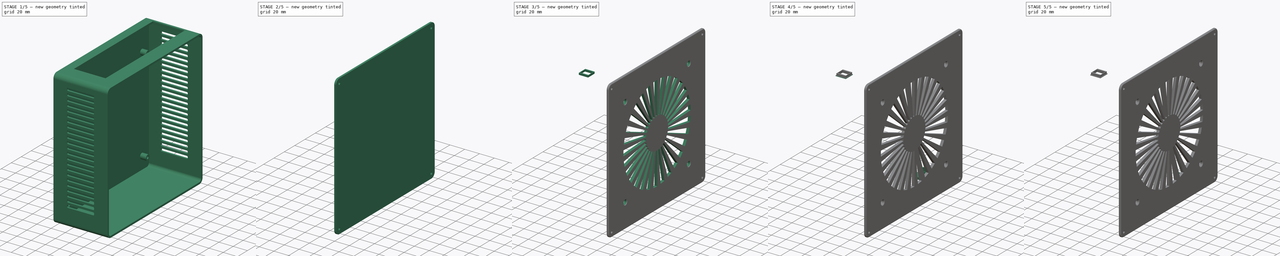
[diagram: build sequence overview — one tinted view per stage of 5, left to right]
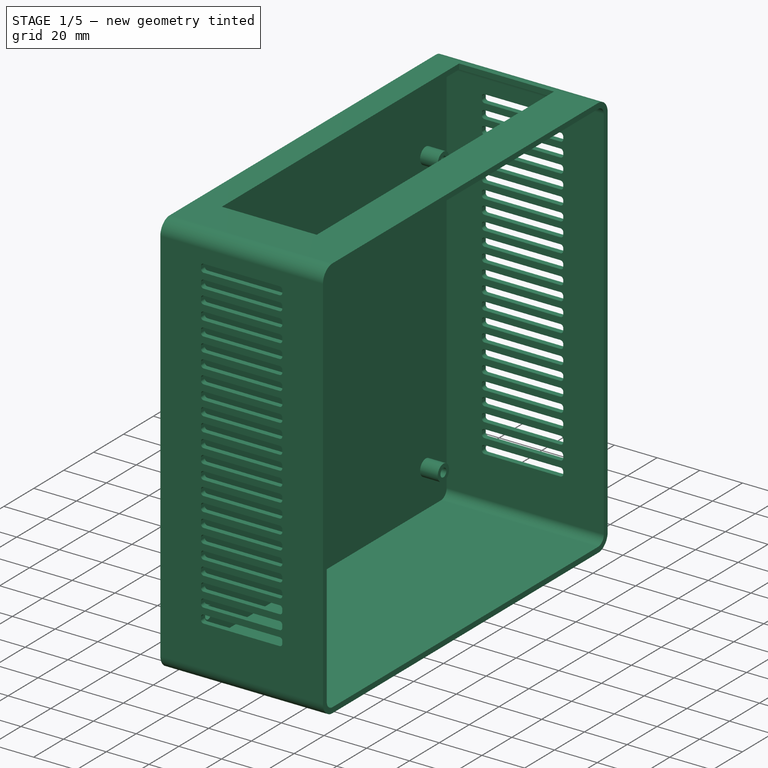
[diagram: stage 1 of 5 — iso view after this stage's code; geometry added in this stage tinted green]
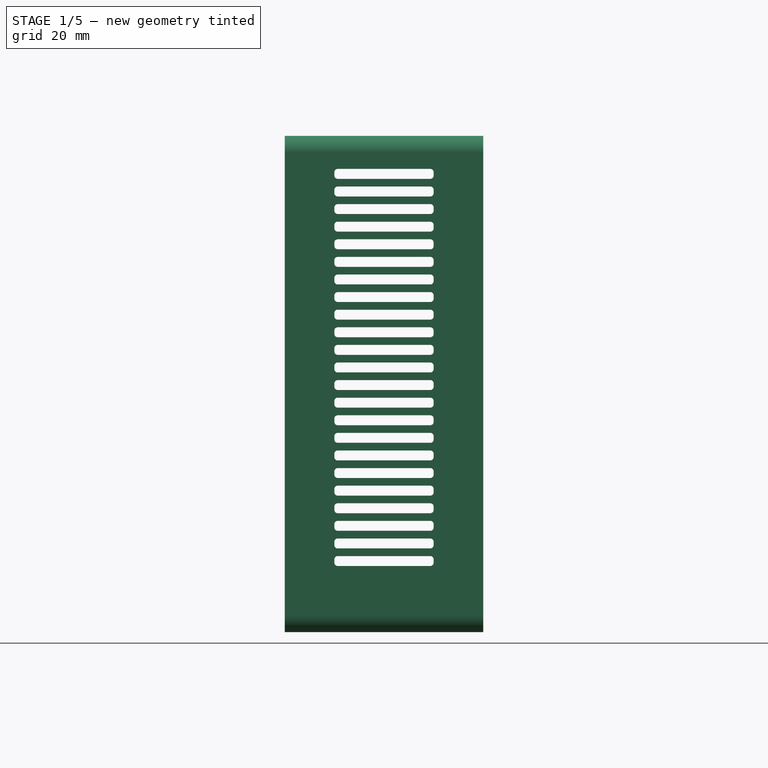
[diagram: stage 1 of 5 — front view after this stage's code; geometry added in this stage tinted green]
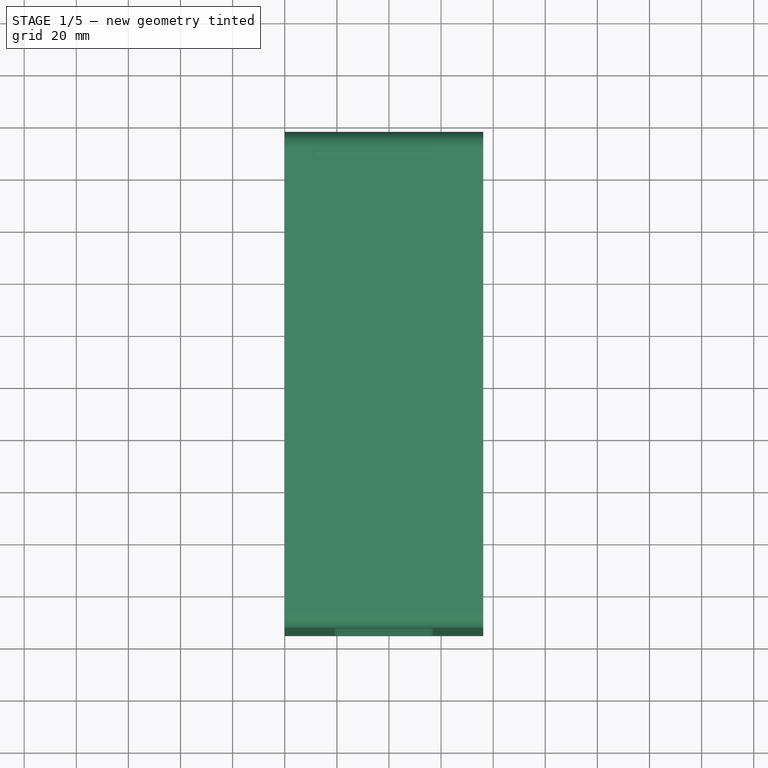
[diagram: stage 1 of 5 — top view after this stage's code; geometry added in this stage tinted green]
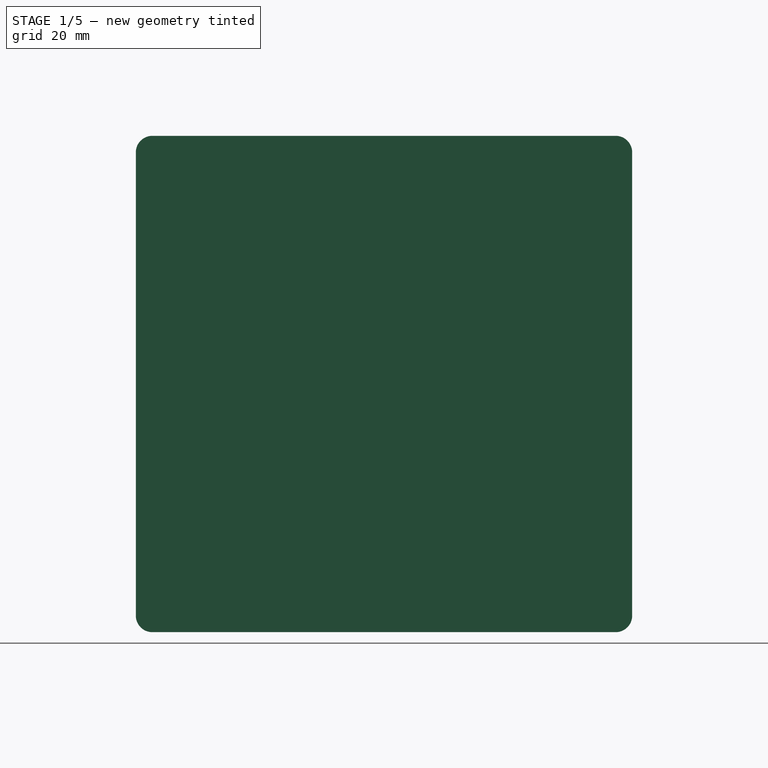
[diagram: stage 1 of 5 — right view after this stage's code; geometry added in this stage tinted green]
FCSTD DOCUMENT  (FreeCAD 1.1R20260113 (Git shallow))
Label: Mini-ITX-Case
License: All rights reserved
LicenseURL: https://en.wikipedia.org/wiki/All_rights_reserved
objects: Sketcher::SketchObject×22, PartDesign::Pad×16, PartDesign::Pocket×7, App::Point×5, PartDesign::Body×5, PartDesign::SubShapeBinder×4, PartDesign::Chamfer×3, PartDesign::Mirrored×2, PartDesign::PolarPattern×2, PartDesign::Fillet×2, PartDesign::LinearPattern×1, PartDesign::MultiTransform×1, Part::DatumLine×1
note: 149 computed .brp shape members not serialized (recipe doc carries the construction recipe); baked Part::Feature solids carry a one-line shape summary decoded from their .brp

FEATURE [App::Point] Origin001
  Role = Origin
FEATURE [Sketcher::SketchObject] Sketch
  ArcFitTolerance = 1e-06
  AttachmentSupport = -> [Origin]
  ExternalTypes = [0]
  FullyConstrained = true
  MakeInternals = false
  MapMode = 5
  Placement = pos=(0,0,0) rot=(0.57735,0.57735,0.57735;2.0944rad)
  sketch-geometry (10):
    g0: LineSegment StartX=-88.9 StartY=-95.25 StartZ=0 EndX=88.9 EndY=-95.25 EndZ=0
    g1: LineSegment StartX=95.25 StartY=-88.9 StartZ=0 EndX=95.25 EndY=88.9 EndZ=0
    g2: LineSegment StartX=88.9 StartY=95.25 StartZ=0 EndX=-88.9 EndY=95.25 EndZ=0
    g3: LineSegment StartX=-95.25 StartY=88.9 StartZ=0 EndX=-95.25 EndY=-88.9 EndZ=0
    g4: ArcOfCircle CenterX=-88.9 CenterY=-88.9 CenterZ=0 NormalX=0 NormalY=0 NormalZ=1 AngleXU=0 Radius=6.35 StartAngle=3.14159 EndAngle=4.71239
    g5: ArcOfCircle CenterX=88.9 CenterY=-88.9 CenterZ=0 NormalX=0 NormalY=0 NormalZ=1 AngleXU=0 Radius=6.35 StartAngle=4.71239 EndAngle=6.28319
    g6: ArcOfCircle CenterX=88.9 CenterY=88.9 CenterZ=0 NormalX=0 NormalY=0 NormalZ=1 AngleXU=0 Radius=6.35 StartAngle=-9e-16 EndAngle=1.5708
    g7: ArcOfCircle CenterX=-88.9 CenterY=88.9 CenterZ=0 NormalX=0 NormalY=0 NormalZ=1 AngleXU=0 Radius=6.35 StartAngle=1.5708 EndAngle=3.14159
    g8: GeomPoint [constr] X=95.25 Y=95.25 Z=0
    g9: GeomPoint [constr] X=0 Y=0 Z=0
  constraints (22):
    c: Tangent(g0,g4) = -1.5708
    c: Tangent(g0,g5) = -1.5708
    c: Tangent(g1,g5) = -1.5708
    c: Tangent(g1,g6) = -1.5708
    c: Tangent(g2,g6) = -1.5708
    c: Tangent(g2,g7) = -1.5708
    c: Tangent(g3,g7) = -1.5708
    c: Tangent(g3,g4) = -1.5708
    c: Horizontal(g0)
    c: Horizontal(g2)
    c: Vertical(g1)
    c: Vertical(g3)
    c: Equal(g4,g5)
    c: Equal(g5,g6)
    c: Equal(g6,g7)
    c: Symmetric(g2,g0,g9)
    c: PointOnObject(g8,g1)
    c: PointOnObject(g8,g2)
    c: Distance(g1,g3) = 190.5
    c: Distance(g0,g2) = 190.5
    c: Radius(g5) = 6.35
    c: Coincident(g9,g-1)
FEATURE [PartDesign::Pad] Pad
  Direction = (1,0,0)
  Length = 2.54
  Length2 = 10
  Profile = -> Sketch
  ReferenceAxis = -> Sketch [N_Axis]
  Refine = true
  SideType = 0
  Suppressed = false
  Type = 0
  Type2 = 0
FEATURE [Sketcher::SketchObject] Sketch001
  ArcFitTolerance = 1e-06
  AttachmentSupport = -> [Pad]
  ExternalGeometry = -> [Pad]
  ExternalTypes = [0]
  FullyConstrained = true
  MakeInternals = false
  MapMode = 5
  Placement = pos=(2.54,0,0) rot=(0.57735,0.57735,0.57735;2.0944rad)
  sketch-geometry (13):
    g0: LineSegment [constr] StartX=-78.74 StartY=-74.93 StartZ=0 EndX=78.74 EndY=-74.93 EndZ=0
    g1: LineSegment [constr] StartX=78.74 StartY=-74.93 StartZ=0 EndX=78.74 EndY=80.01 EndZ=0
    g2: LineSegment [constr] StartX=78.74 StartY=80.01 StartZ=0 EndX=-78.74 EndY=80.01 EndZ=0
    g3: LineSegment [constr] StartX=-78.74 StartY=80.01 StartZ=0 EndX=-78.74 EndY=-74.93 EndZ=0
    g4: GeomPoint [constr] X=0 Y=2.54 Z=0
    g5: Circle CenterX=-78.74 CenterY=80.01 CenterZ=0 NormalX=0 NormalY=0 NormalZ=1 AngleXU=0 Radius=1.9685
    g6: Circle CenterX=78.74 CenterY=-74.93 CenterZ=0 NormalX=0 NormalY=0 NormalZ=1 AngleXU=0 Radius=1.9685
    g7: Circle CenterX=-78.74 CenterY=-74.93 CenterZ=0 NormalX=0 NormalY=0 NormalZ=1 AngleXU=0 Radius=1.9685
    g8: Circle CenterX=78.74 CenterY=57.15 CenterZ=0 NormalX=0 NormalY=0 NormalZ=1 AngleXU=0 Radius=1.9685
    g9: Circle CenterX=78.74 CenterY=57.15 CenterZ=0 NormalX=0 NormalY=0 NormalZ=1 AngleXU=0 Radius=3.81
    g10: Circle CenterX=78.74 CenterY=-74.93 CenterZ=0 NormalX=0 NormalY=0 NormalZ=1 AngleXU=0 Radius=3.81
    g11: Circle CenterX=-78.74 CenterY=-74.93 CenterZ=0 NormalX=0 NormalY=0 NormalZ=1 AngleXU=0 Radius=3.81
    g12: Circle CenterX=-78.74 CenterY=80.01 CenterZ=0 NormalX=0 NormalY=0 NormalZ=1 AngleXU=0 Radius=3.81
  constraints (30):
    c: Coincident(g0,g1)
    c: Coincident(g1,g2)
    c: Coincident(g2,g3)
    c: Coincident(g3,g0)
    c: Horizontal(g0)
    c: Horizontal(g2)
    c: Vertical(g1)
    c: Vertical(g3)
    c: Symmetric(g2,g0,g4)
    c: Distance(g1,g3) = 157.48
    c: Distance(g0,g2) = 154.94
    c: PointOnObject(g4,g-2)
    c: Distance(g-3,g2) = 15.24
    c: Coincident(g5,g2)
    c: Coincident(g6,g0)
    c: Coincident(g7,g0)
    c: PointOnObject(g8,g1)
    c: Diameter(g8) = 3.937
    c: Equal(g8,g6)
    c: Equal(g8,g5)
    c: Equal(g8,g7)
    c: Coincident(g9,g8)
    c: Diameter(g9) = 7.62
    c: Coincident(g10,g0)
    c: Coincident(g11,g0)
    c: Coincident(g12,g2)
    c: Equal(g9,g12)
    c: Equal(g9,g10)
    c: Equal(g9,g11)
    c: Distance(g8,g2) = 22.86
FEATURE [PartDesign::Pad] Pad001
  BaseFeature = -> Pad
  Direction = (1,0,0)
  Length = 8.255
  Length2 = 10
  Profile = -> Sketch001
  ReferenceAxis = -> Sketch001 [N_Axis]
  Refine = true
  SideType = 0
  Suppressed = false
  Type = 0
  Type2 = 0
FEATURE [Sketcher::SketchObject] Sketch002
  ArcFitTolerance = 1e-06
  AttachmentSupport = -> [Pad001]
  ExternalGeometry = -> [Pad001]
  ExternalTypes = [0,0]
  FullyConstrained = true
  MakeInternals = false
  MapMode = 5
  Placement = pos=(2.54,0,0) rot=(0.57735,0.57735,0.57735;2.0944rad)
  sketch-geometry (18):
    g0: LineSegment StartX=-95.25 StartY=88.9 StartZ=0 EndX=-95.25 EndY=-88.9 EndZ=0
    g1: LineSegment StartX=-88.9 StartY=-95.25 StartZ=0 EndX=88.9 EndY=-95.25 EndZ=0
    g2: LineSegment StartX=95.25 StartY=-88.9 StartZ=0 EndX=95.25 EndY=88.9 EndZ=0
    g3: LineSegment StartX=88.9 StartY=95.25 StartZ=0 EndX=-88.9 EndY=95.25 EndZ=0
    g4: ArcOfCircle CenterX=-88.9 CenterY=88.9 CenterZ=0 NormalX=0 NormalY=0 NormalZ=1 AngleXU=0 Radius=6.35 StartAngle=1.5708 EndAngle=3.14159
    g5: ArcOfCircle CenterX=-88.9 CenterY=-88.9 CenterZ=0 NormalX=0 NormalY=0 NormalZ=1 AngleXU=0 Radius=6.35 StartAngle=3.14159 EndAngle=4.71239
    g6: ArcOfCircle CenterX=88.9 CenterY=-88.9 CenterZ=0 NormalX=0 NormalY=0 NormalZ=1 AngleXU=0 Radius=6.35 StartAngle=4.71239 EndAngle=6.28319
    g7: ArcOfCircle CenterX=88.9 CenterY=88.9 CenterZ=0 NormalX=0 NormalY=0 NormalZ=1 AngleXU=0 Radius=6.35 StartAngle=-9e-16 EndAngle=1.5708
    g8: LineSegment StartX=-92.71 StartY=88.9 StartZ=0 EndX=-92.71 EndY=-88.9 EndZ=0
    g9: LineSegment StartX=-88.9 StartY=-92.71 StartZ=0 EndX=88.9 EndY=-92.71 EndZ=0
    g10: LineSegment StartX=92.71 StartY=-88.9 StartZ=0 EndX=92.71 EndY=88.9 EndZ=0
    g11: LineSegment StartX=88.9 StartY=92.71 StartZ=0 EndX=-88.9 EndY=92.71 EndZ=0
    g12: ArcOfCircle CenterX=-88.9 CenterY=88.9 CenterZ=0 NormalX=0 NormalY=0 NormalZ=1 AngleXU=0 Radius=3.81 StartAngle=1.5708 EndAngle=3.14159
    g13: ArcOfCircle CenterX=-88.9 CenterY=-88.9 CenterZ=0 NormalX=0 NormalY=0 NormalZ=1 AngleXU=0 Radius=3.81 StartAngle=3.14159 EndAngle=4.71239
    g14: ArcOfCircle CenterX=88.9 CenterY=-88.9 CenterZ=0 NormalX=0 NormalY=0 NormalZ=1 AngleXU=0 Radius=3.81 StartAngle=4.71239 EndAngle=6.28319
    g15: ArcOfCircle CenterX=88.9 CenterY=88.9 CenterZ=0 NormalX=0 NormalY=0 NormalZ=1 AngleXU=0 Radius=3.81 StartAngle=5e-16 EndAngle=1.5708
    g16: GeomPoint [constr] X=95.25 Y=-95.25 Z=0
    g17: GeomPoint [constr] X=0 Y=0 Z=0
  constraints (36):
    c: Tangent(g0,g4) = -1.5708
    c: Tangent(g0,g5) = -1.5708
    c: Tangent(g1,g5) = -1.5708
    c: Tangent(g1,g6) = -1.5708
    c: Tangent(g2,g6) = -1.5708
    c: Tangent(g2,g7) = -1.5708
    c: Tangent(g3,g7) = -1.5708
    c: Tangent(g3,g4) = -1.5708
    c: Vertical(g2)
    c: Horizontal(g3)
    c: Equal(g4,g5)
    c: Equal(g5,g6)
    c: Equal(g6,g7)
    c: Tangent(g8,g12) = -1.5708
    c: Tangent(g8,g13) = -1.5708
    c: Tangent(g9,g13) = -1.5708
    c: Tangent(g9,g14) = -1.5708
    c: Tangent(g10,g14) = -1.5708
    c: Tangent(g10,g15) = -1.5708
    c: Tangent(g11,g15) = -1.5708
    c: Tangent(g11,g12) = -1.5708
    c: Coincident(g4,g12)
    c: Coincident(g5,g13)
    c: Coincident(g6,g14)
    c: Coincident(g7,g15)
    c: Vertical(g8)
    c: Vertical(g10)
    c: Horizontal(g9)
    c: Symmetric(g2,g0,g17)
    c: PointOnObject(g16,g1)
    c: PointOnObject(g16,g2)
    c: Radius(g5) = 6.35
    c: Coincident(g17,g-1)
    c: Tangent(g-4,g1)
    c: Tangent(g-3,g0)
    c: Distance(g8,g0) = 2.54
FEATURE [PartDesign::Pad] Pad002
  BaseFeature = -> Pad001
  Direction = (1,0,0)
  Length = 73.66
  Length2 = 10
  Profile = -> Sketch002
  ReferenceAxis = -> Sketch002 [N_Axis]
  Refine = true
  SideType = 0
  Suppressed = false
  Type = 0
  Type2 = 0
FEATURE [Sketcher::SketchObject] Sketch003
  ArcFitTolerance = 1e-06
  AttachmentSupport = -> [Pad002]
  ExternalGeometry = -> [Pad002]
  ExternalTypes = [0,0]
  FullyConstrained = true
  MakeInternals = false
  MapMode = 5
  Placement = pos=(0,0,95.25) rot=(0,0,1;0rad)
  sketch-geometry (8):
    g0: LineSegment [constr] StartX=10.795 StartY=80.7085 StartZ=0 EndX=10.795 EndY=78.74 EndZ=0
    g1: LineSegment [constr] StartX=10.795 StartY=78.74 StartZ=0 EndX=10.795 EndY=76.7715 EndZ=0
    g2: LineSegment [constr] StartX=10.795 StartY=-76.7715 StartZ=0 EndX=10.795 EndY=-78.74 EndZ=0
    g3: LineSegment [constr] StartX=10.795 StartY=-78.74 StartZ=0 EndX=10.795 EndY=-80.7085 EndZ=0
    g4: LineSegment StartX=56.388 StartY=87.63 StartZ=0 EndX=11.938 EndY=87.63 EndZ=0
    g5: LineSegment StartX=11.938 StartY=87.63 StartZ=0 EndX=11.938 EndY=-71.12 EndZ=0
    g6: LineSegment StartX=11.938 StartY=-71.12 StartZ=0 EndX=56.388 EndY=-71.12 EndZ=0
    g7: LineSegment StartX=56.388 StartY=-71.12 StartZ=0 EndX=56.388 EndY=87.63 EndZ=0
  constraints (23):
    c: Coincident(g0,g-3)
    c: Coincident(g0,g1)
    c: Coincident(g1,g-3)
    c: Equal(g1,g0)
    c: Parallel(g0,g1)
    c: Coincident(g2,g-4)
    c: Coincident(g2,g3)
    c: Coincident(g3,g-4)
    c: Equal(g3,g2)
    c: Parallel(g2,g3)
    c: Coincident(g4,g5)
    c: Coincident(g5,g6)
    c: Coincident(g6,g7)
    c: Coincident(g7,g4)
    c: Horizontal(g4)
    c: Horizontal(g6)
    c: Vertical(g5)
    c: Vertical(g7)
    c: DistanceY(g5,g5) = 158.75
    c: DistanceX(g6,g6) = 44.45
    c: Distance(g2,g6) = 7.62
    c: Distance(g5,g-2) = 11.938
    c: Distance(g2,g5) = 1.143
FEATURE [PartDesign::Pocket] Pocket
  BaseFeature = -> Pad002
  Direction = (0,0,-1)
  Length = 5
  Length2 = 5
  Profile = -> Sketch003
  ReferenceAxis = -> Sketch003 [N_Axis]
  Refine = true
  SideType = 0
  Suppressed = false
  Type = 3
  Type2 = 0
  UpToFace = -> Pad002 [Face10]
FEATURE [Sketcher::SketchObject] Sketch004
  ArcFitTolerance = 1e-06
  AttachmentSupport = -> [Pocket]
  ExternalGeometry = -> [Pocket]
  ExternalTypes = [0,0,0]
  FullyConstrained = true
  MakeInternals = false
  MapMode = 5
  Placement = pos=(0,-95.25,0) rot=(1,0,0;1.5708rad)
  sketch-geometry (13):
    g0: LineSegment [constr] StartX=76.2 StartY=0 StartZ=0 EndX=38.1 EndY=0 EndZ=0
    g1: LineSegment [constr] StartX=38.1 StartY=0 StartZ=0 EndX=0 EndY=0 EndZ=0
    g2: LineSegment [constr] StartX=38.1 StartY=88.9 StartZ=0 EndX=38.1 EndY=-88.9 EndZ=0
    g3: LineSegment StartX=55.88 StartY=82.55 StartZ=0 EndX=20.32 EndY=82.55 EndZ=0
    g4: LineSegment StartX=19.05 StartY=81.28 StartZ=0 EndX=19.05 EndY=80.01 EndZ=0
    g5: LineSegment StartX=20.32 StartY=78.74 StartZ=0 EndX=55.88 EndY=78.74 EndZ=0
    g6: LineSegment StartX=57.15 StartY=80.01 StartZ=0 EndX=57.15 EndY=81.28 EndZ=0
    g7: ArcOfCircle CenterX=55.88 CenterY=81.28 CenterZ=0 NormalX=0 NormalY=0 NormalZ=1 AngleXU=0 Radius=1.27 StartAngle=-1.8e-15 EndAngle=1.5708
    g8: ArcOfCircle CenterX=20.32 CenterY=81.28 CenterZ=0 NormalX=0 NormalY=0 NormalZ=1 AngleXU=0 Radius=1.27 StartAngle=1.5708 EndAngle=3.14159
    g9: ArcOfCircle CenterX=20.32 CenterY=80.01 CenterZ=0 NormalX=0 NormalY=0 NormalZ=1 AngleXU=0 Radius=1.27 StartAngle=3.14159 EndAngle=4.71239
    g10: ArcOfCircle CenterX=55.88 CenterY=80.01 CenterZ=0 NormalX=0 NormalY=0 NormalZ=1 AngleXU=0 Radius=1.27 StartAngle=4.71239 EndAngle=6.28319
    g11: GeomPoint [constr] X=19.05 Y=78.74 Z=0
    g12: GeomPoint [constr] X=38.1 Y=80.645 Z=0
  constraints (34):
    c: Coincident(g0,g1)
    c: Coincident(g1,g-1)
    c: Equal(g1,g0)
    c: PointOnObject(g0,g-3)
    c: PointOnObject(g0,g-1)
    c: Parallel(g0,g1)
    c: PointOnObject(g2,g-4)
    c: PointOnObject(g2,g-5)
    c: Vertical(g2)
    c: PointOnObject(g0,g2)
    c: DistanceY(g2,g2) = 177.8
    c: Tangent(g3,g7) = -1.5708
    c: Tangent(g3,g8) = -1.5708
    c: Tangent(g4,g8) = -1.5708
    c: Tangent(g4,g9) = -1.5708
    c: Tangent(g5,g9) = -1.5708
    c: Tangent(g5,g10) = -1.5708
    c: Tangent(g6,g10) = -1.5708
    c: Tangent(g6,g7) = -1.5708
    c: Horizontal(g3)
    c: Horizontal(g5)
    c: Vertical(g4)
    c: Vertical(g6)
    c: Equal(g7,g8)
    c: Equal(g8,g9)
    c: Equal(g9,g10)
    c: Symmetric(g5,g3,g12)
    c: PointOnObject(g11,g4)
    c: PointOnObject(g11,g5)
    c: Radius(g8) = 1.27
    c: PointOnObject(g12,g2)
    c: Distance(g3,g5) = 3.81
    c: Distance(g6,g4) = 38.1
    c: Distance(g3,g-4) = 6.35
FEATURE [PartDesign::Pocket] Pocket001
  BaseFeature = -> Pocket
  Direction = (0,1,-2e-16)
  Length = 5
  Length2 = 5
  Profile = -> Sketch004
  ReferenceAxis = -> Sketch004 [N_Axis]
  Refine = true
  SideType = 0
  Suppressed = false
  Type = 3
  Type2 = 0
  UpToFace = -> Pocket [Face4]
FEATURE [PartDesign::LinearPattern] LinearPattern
  BaseFeature = -> Pocket001
  Direction = -> Sketch004 [V_Axis]
  Direction2 = -> Sketch004 [V_Axis]
  Length = 148.59
  Length2 = 100
  Mode = 0
  Mode2 = 0
  Occurrences = 23
  Occurrences2 = 1
  Offset = 6.75409
  Offset2 = 100
  Originals = -> [Pocket001]
  Refine = true
  Reversed = true
  Reversed2 = false
  SpacingPattern = [0]
  SpacingPattern2 = [0]
  Spacings = [-1,-1,-1,-1,-1,-1,-1,-1,-1,-1,-1,-1,-1,-1,-1,-1,-1,-1,-1,-1,-1,-1]
  Suppressed = false
  TransformMode = 0
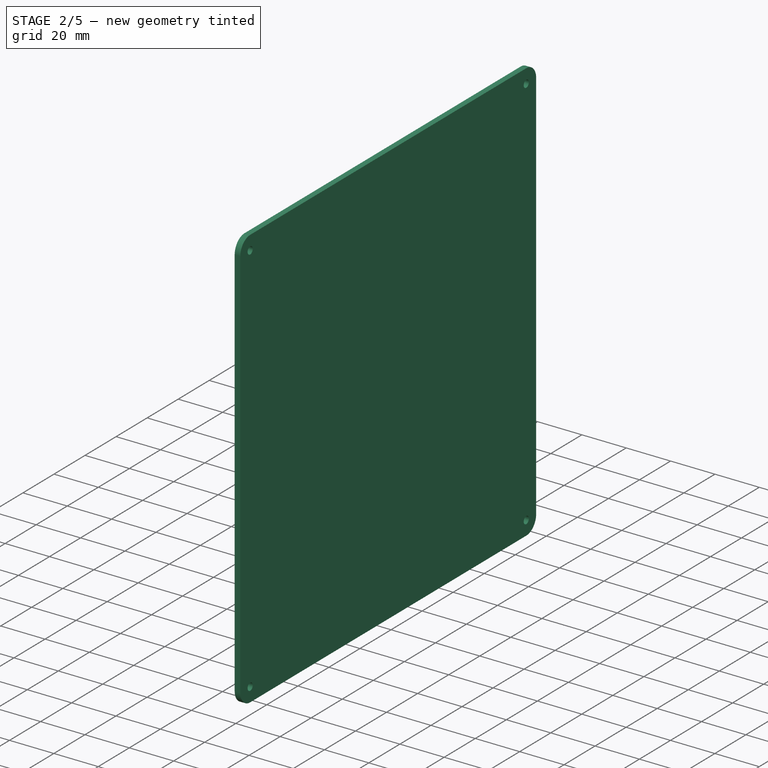
[diagram: stage 2 of 5 — iso view after this stage's code; geometry added in this stage tinted green]
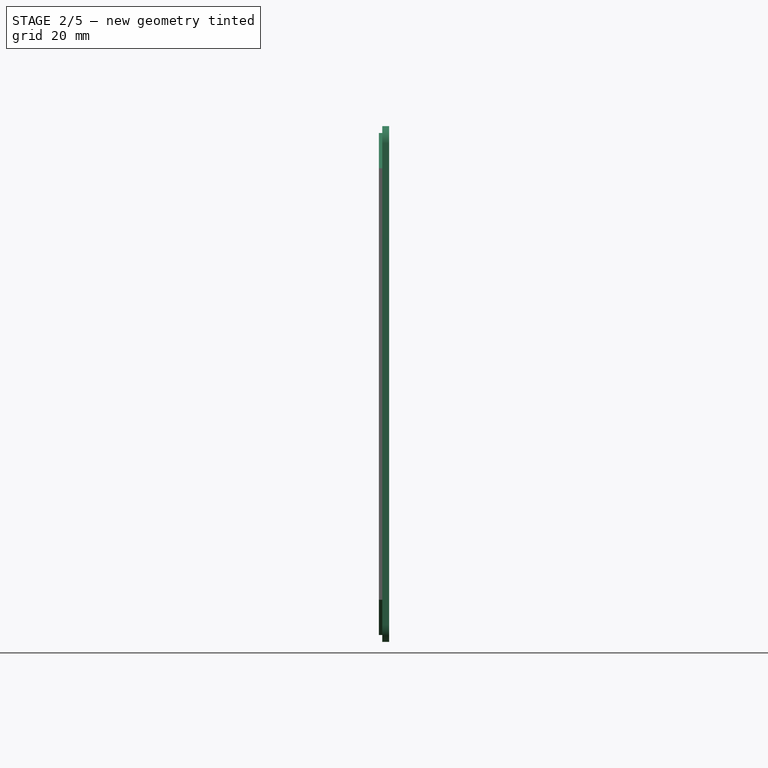
[diagram: stage 2 of 5 — front view after this stage's code; geometry added in this stage tinted green]
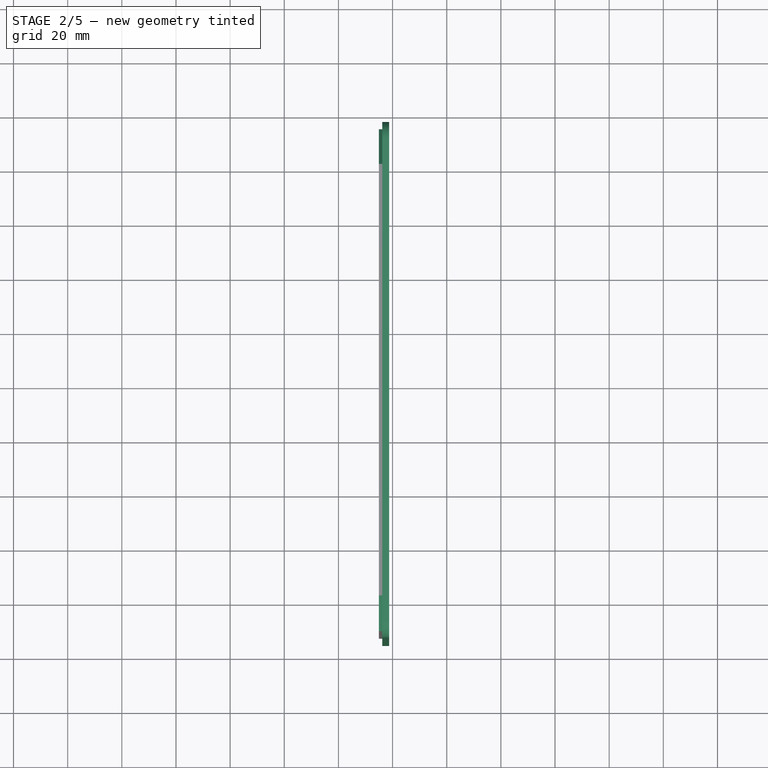
[diagram: stage 2 of 5 — top view after this stage's code; geometry added in this stage tinted green]
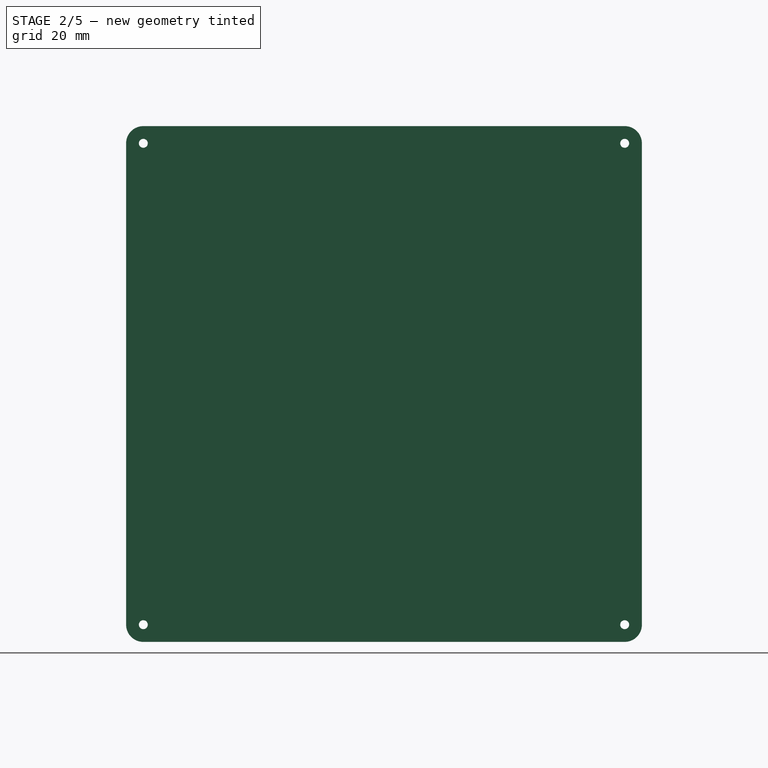
[diagram: stage 2 of 5 — right view after this stage's code; geometry added in this stage tinted green]
FEATURE [Sketcher::SketchObject] Sketch005
  ArcFitTolerance = 1e-06
  AttachmentSupport = -> [LinearPattern]
  ExternalGeometry = -> [LinearPattern]
  ExternalTypes = [0,0,0]
  FullyConstrained = true
  MakeInternals = false
  MapMode = 5
  Placement = pos=(0,0,-95.25) rot=(1,0,0;3.14159rad)
  sketch-geometry (7):
    g0: LineSegment StartX=29.21 StartY=-86.36 StartZ=0 EndX=46.99 EndY=-86.36 EndZ=0
    g1: LineSegment StartX=46.99 StartY=-86.36 StartZ=0 EndX=46.99 EndY=-68.58 EndZ=0
    g2: LineSegment StartX=46.99 StartY=-68.58 StartZ=0 EndX=29.21 EndY=-68.58 EndZ=0
    g3: LineSegment StartX=29.21 StartY=-68.58 StartZ=0 EndX=29.21 EndY=-86.36 EndZ=0
    g4: GeomPoint [constr] X=38.1 Y=-77.47 Z=0
    g5: LineSegment [constr] StartX=0 StartY=-77.47 StartZ=0 EndX=38.1 EndY=-77.47 EndZ=0
    g6: LineSegment [constr] StartX=38.1 StartY=-77.47 StartZ=0 EndX=76.2 EndY=-77.47 EndZ=0
  constraints (19):
    c: Coincident(g0,g1)
    c: Coincident(g1,g2)
    c: Coincident(g2,g3)
    c: Coincident(g3,g0)
    c: Horizontal(g0)
    c: Horizontal(g2)
    c: Vertical(g1)
    c: Vertical(g3)
    c: Symmetric(g2,g0,g4)
    c: Distance(g1,g3) = 17.78
    c: Equal(g3,g0)
    c: PointOnObject(g5,g-4)
    c: Horizontal(g5)
    c: Coincident(g5,g6)
    c: PointOnObject(g6,g-3)
    c: Horizontal(g6)
    c: Equal(g6,g5)
    c: Coincident(g4,g5)
    c: Distance(g-5,g0) = 2.54
FEATURE [PartDesign::Pocket] Pocket002
  BaseFeature = -> LinearPattern
  Direction = (0,0,1)
  Length = 5
  Length2 = 5
  Profile = -> Sketch005
  ReferenceAxis = -> Sketch005 [N_Axis]
  Refine = true
  SideType = 0
  Suppressed = false
  Type = 3
  Type2 = 0
  UpToFace = -> LinearPattern [Face385]
FEATURE [Sketcher::SketchObject] Sketch006
  ArcFitTolerance = 1e-06
  AttachmentSupport = -> [Pocket002]
  ExternalGeometry = -> [Pocket002]
  ExternalTypes = [0,0,0,0]
  FullyConstrained = false
  MakeInternals = false
  MapMode = 5
  Placement = pos=(0,0,95.25) rot=(0,0,1;0rad)
  sketch-geometry (9):
    g0: LineSegment [constr] StartX=76.2 StartY=-80.01 StartZ=0 EndX=38.1 EndY=-80.01 EndZ=0
    g1: LineSegment [constr] StartX=38.1 StartY=-80.01 StartZ=0 EndX=0 EndY=-80.01 EndZ=0
    g2: LineSegment StartX=31.75 StartY=-73.66 StartZ=0 EndX=31.75 EndY=-86.36 EndZ=0
    g3: LineSegment StartX=31.75 StartY=-86.36 StartZ=0 EndX=44.45 EndY=-86.36 EndZ=0
    g4: LineSegment StartX=44.45 StartY=-86.36 StartZ=0 EndX=44.45 EndY=-73.66 EndZ=0
    g5: LineSegment StartX=44.45 StartY=-73.66 StartZ=0 EndX=31.75 EndY=-73.66 EndZ=0
    g6: GeomPoint [constr] X=38.1 Y=-80.01 Z=0
    g7: LineSegment [constr] StartX=21.0576 StartY=-71.12 StartZ=0 EndX=21.0576 EndY=-80.01 EndZ=0
    g8: LineSegment [constr] StartX=21.0576 StartY=-80.01 StartZ=0 EndX=21.0576 EndY=-88.9 EndZ=0
  constraints (25):
    c: PointOnObject(g0,g-4)
    c: Horizontal(g0)
    c: Coincident(g0,g1)
    c: PointOnObject(g1,g-5)
    c: Horizontal(g1)
    c: Equal(g1,g0)
    c: Coincident(g2,g3)
    c: Coincident(g3,g4)
    c: Coincident(g4,g5)
    c: Coincident(g5,g2)
    c: Vertical(g2)
    c: Vertical(g4)
    c: Horizontal(g3)
    c: Horizontal(g5)
    c: Symmetric(g4,g2,g6)
    c: Distance(g2,g4) = 12.7
    c: Coincident(g6,g0)
    c: Equal(g5,g2)
    c: PointOnObject(g7,g-6)
    c: PointOnObject(g7,g1)
    c: Vertical(g7)
    c: Coincident(g7,g8)
    c: PointOnObject(g8,g-3)
    c: Vertical(g8)
    c: Equal(g8,g7)
FEATURE [PartDesign::Pocket] Pocket003
  BaseFeature = -> Pocket002
  Direction = (0,0,-1)
  Length = 5
  Length2 = 5
  Profile = -> Sketch006
  ReferenceAxis = -> Sketch006 [N_Axis]
  Refine = true
  SideType = 0
  Suppressed = false
  Type = 3
  Type2 = 0
  UpToFace = -> Pocket002 [Face393]
FEATURE [Sketcher::SketchObject] Sketch007
  ArcFitTolerance = 1e-06
  AttachmentSupport = -> [Pocket003]
  ExternalGeometry = -> [Pocket003]
  ExternalTypes = [0,0,0,0,0,0]
  FullyConstrained = true
  MakeInternals = false
  MapMode = 5
  Placement = pos=(76.2,0,0) rot=(0.57735,0.57735,0.57735;2.0944rad)
  sketch-geometry (6):
    g0: Circle [constr] CenterX=-88.9 CenterY=-88.9 CenterZ=0 NormalX=0 NormalY=0 NormalZ=1 AngleXU=0 Radius=3.81
    g1: LineSegment StartX=-92.71 StartY=-79.7019 StartZ=0 EndX=-86.2059 EndY=-86.2059 EndZ=0
    g2: LineSegment StartX=-86.2059 StartY=-86.2059 StartZ=0 EndX=-79.7019 EndY=-92.71 EndZ=0
    g3: LineSegment StartX=-79.7019 StartY=-92.71 StartZ=0 EndX=-88.9 EndY=-92.71 EndZ=0
    g4: LineSegment StartX=-92.71 StartY=-88.9 StartZ=0 EndX=-92.71 EndY=-79.7019 EndZ=0
    g5: Circle CenterX=-88.9 CenterY=-88.9 CenterZ=0 NormalX=0 NormalY=0 NormalZ=1 AngleXU=0 Radius=1.9685
  constraints (14):
    c: Coincident(g0,g-3)
    c: PointOnObject(g-3,g0)
    c: PointOnObject(g1,g-4)
    c: Tangent(g1,g0) = 1.5708
    c: Coincident(g1,g2)
    c: PointOnObject(g2,g-5)
    c: Tangent(g2,g0)
    c: Equal(g1,g2)
    c: Coincident(g3,g2)
    c: Tangent(g3,g0) = 1.5708
    c: Coincident(g4,g-4)
    c: Coincident(g4,g1)
    c: Diameter(g5) = 3.937
    c: Coincident(g5,g0)
FEATURE [PartDesign::Pad] Pad003
  BaseFeature = -> Pocket003
  Direction = (1,0,0)
  Length = 6.35
  Length2 = 10
  Profile = -> Sketch007
  ReferenceAxis = -> Sketch007 [N_Axis]
  Refine = true
  Reversed = true
  SideType = 0
  Suppressed = false
  Type = 0
  Type2 = 0
FEATURE [PartDesign::Mirrored] Mirror
  MirrorPlane = -> Sketch007 [V_Axis]
  Refine = true
  Suppressed = false
  TransformMode = 0
FEATURE [PartDesign::Mirrored] Mirror001
  MirrorPlane = -> Sketch007 [H_Axis]
  Refine = true
  Suppressed = false
  TransformMode = 0
FEATURE [PartDesign::MultiTransform] MultiTransform
  BaseFeature = -> Pad003
  Originals = -> [Pad003]
  Refine = true
  Suppressed = false
  TransformMode = 0
  Transformations = -> [Mirror,Mirror001]
FEATURE [App::Point] Origin003
  Role = Origin
FEATURE [PartDesign::SubShapeBinder] Binder
  BindCopyOnChange = 0
  BindMode = 0
  ClaimChildren = false
  Context = -> Body001 [Binder.]
  Fuse = false
  MakeFace = true
  OffsetFill = false
  OffsetIntersection = false
  OffsetJoinType = 0
  OffsetOpenResult = false
  PartialLoad = false
  Refine = true
  Relative = true
  Support = -> [Body]
  _Version = 2
FEATURE [Sketcher::SketchObject] Sketch008
  ArcFitTolerance = 1e-06
  AttachmentSupport = -> [Binder]
  ExternalGeometry = -> [Binder]
  ExternalTypes = [0,0,0,0,0,0,0,0,0,0,0,0]
  FullyConstrained = true
  MakeInternals = false
  MapMode = 5
  Placement = pos=(76.2,0,0) rot=(0.57735,0.57735,0.57735;2.0944rad)
FEATURE [PartDesign::Pad] Pad004
  Direction = (1,0,0)
  Length = 1.27
  Length2 = 10
  Profile = -> Sketch008
  ReferenceAxis = -> Sketch008 [N_Axis]
  Refine = true
  Reversed = true
  SideType = 0
  Suppressed = false
  Type = 0
  Type2 = 0
FEATURE [Sketcher::SketchObject] Sketch009
  ArcFitTolerance = 1e-06
  AttachmentSupport = -> [Pad004]
  ExternalGeometry = -> [Binder]
  ExternalTypes = [0,0,0,0,0,0,0,0,0,0,0,0]
  FullyConstrained = true
  MakeInternals = false
  MapMode = 5
  Placement = pos=(76.2,0,0) rot=(0.57735,0.57735,0.57735;2.0944rad)
  sketch-geometry (4):
    g0: Circle CenterX=-88.9 CenterY=-88.9 CenterZ=0 NormalX=0 NormalY=0 NormalZ=1 AngleXU=0 Radius=1.651
    g1: Circle CenterX=88.9 CenterY=-88.9 CenterZ=0 NormalX=0 NormalY=0 NormalZ=1 AngleXU=0 Radius=1.651
    g2: Circle CenterX=88.9 CenterY=88.9 CenterZ=0 NormalX=0 NormalY=0 NormalZ=1 AngleXU=0 Radius=1.651
    g3: Circle CenterX=-88.9 CenterY=88.9 CenterZ=0 NormalX=0 NormalY=0 NormalZ=1 AngleXU=0 Radius=1.651
  constraints (8):
    c: Diameter(g0) = 3.302
    c: Coincident(g0,g-5)
    c: Diameter(g1) = 3.302
    c: Diameter(g2) = 3.302
    c: Diameter(g3) = 3.302
    c: Coincident(g1,g-9)
    c: Coincident(g2,g-11)
    c: Coincident(g-14,g3)
FEATURE [PartDesign::Pad] Pad005
  BaseFeature = -> Pad004
  Direction = (1,0,0)
  Length = 2.54
  Length2 = 10
  Profile = -> Sketch009
  ReferenceAxis = -> Sketch009 [N_Axis]
  Refine = true
  SideType = 0
  Suppressed = false
  Type = 0
  Type2 = 0
FEATURE [PartDesign::Body] Body004  label="BarrelJackHousing"
  AllowCompound = true
  Group = -> [Binder003,Sketch020,Pad014,Sketch021,Pad015]
  Origin = -> Origin008
  Tip = -> Pad015
FEATURE [PartDesign::Fillet] Fillet
  Base = -> MultiTransform [Edge5]
  BaseFeature = -> MultiTransform
  Radius = 1.27
  Refine = true
  SupportTransform = false
  Suppressed = false
  UseAllEdges = false
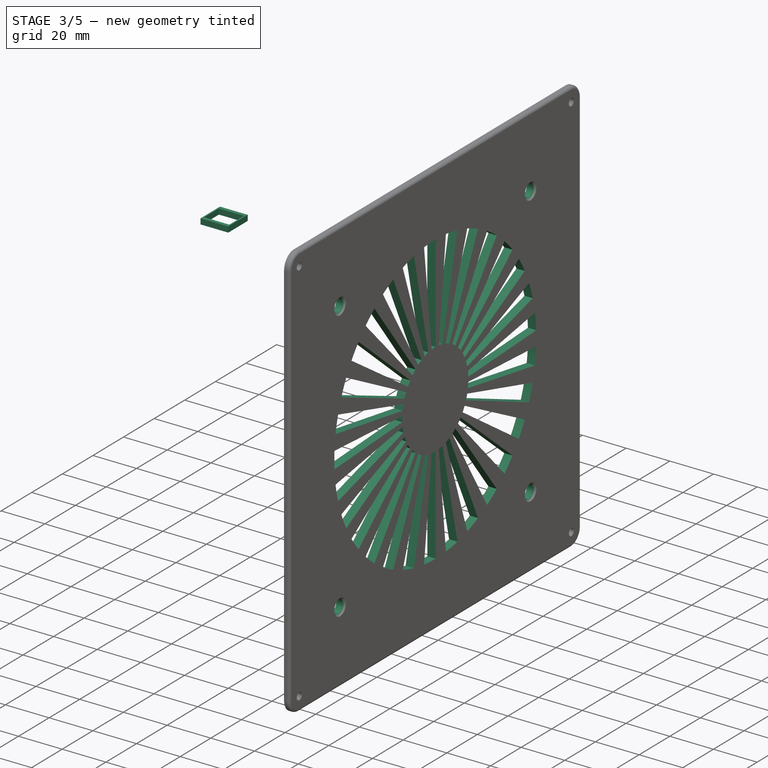
[diagram: stage 3 of 5 — iso view after this stage's code; geometry added in this stage tinted green]
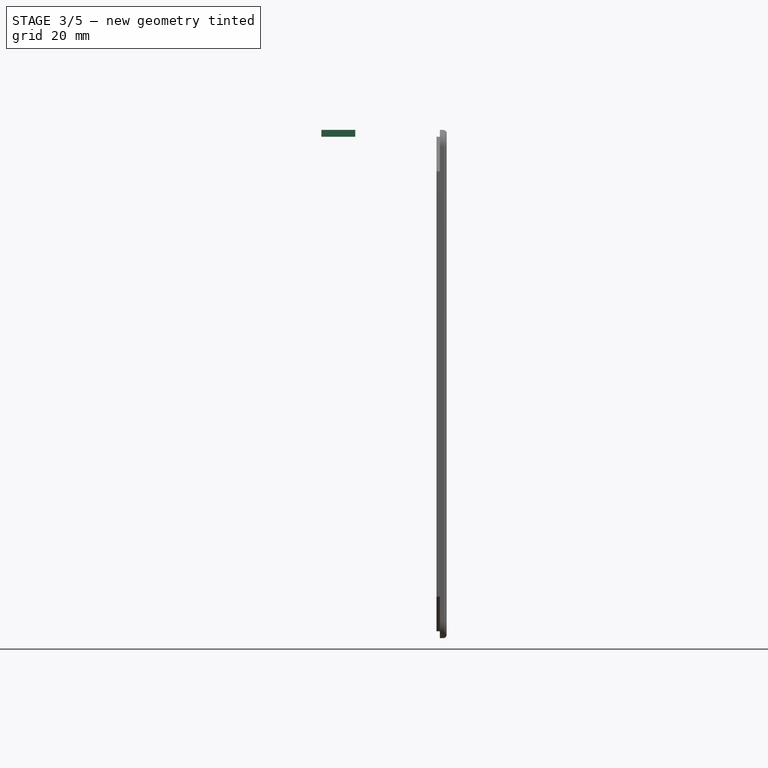
[diagram: stage 3 of 5 — front view after this stage's code; geometry added in this stage tinted green]
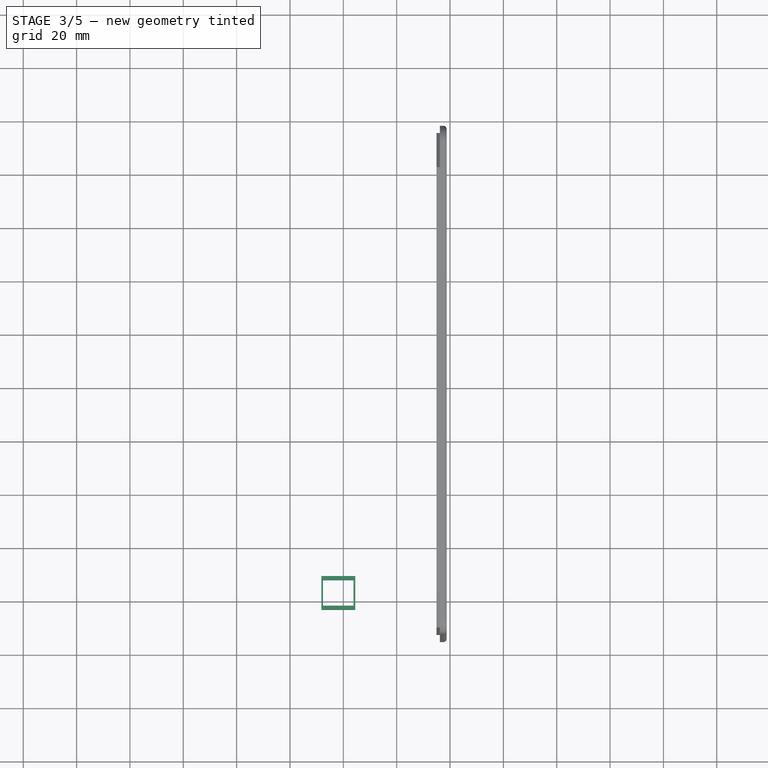
[diagram: stage 3 of 5 — top view after this stage's code; geometry added in this stage tinted green]
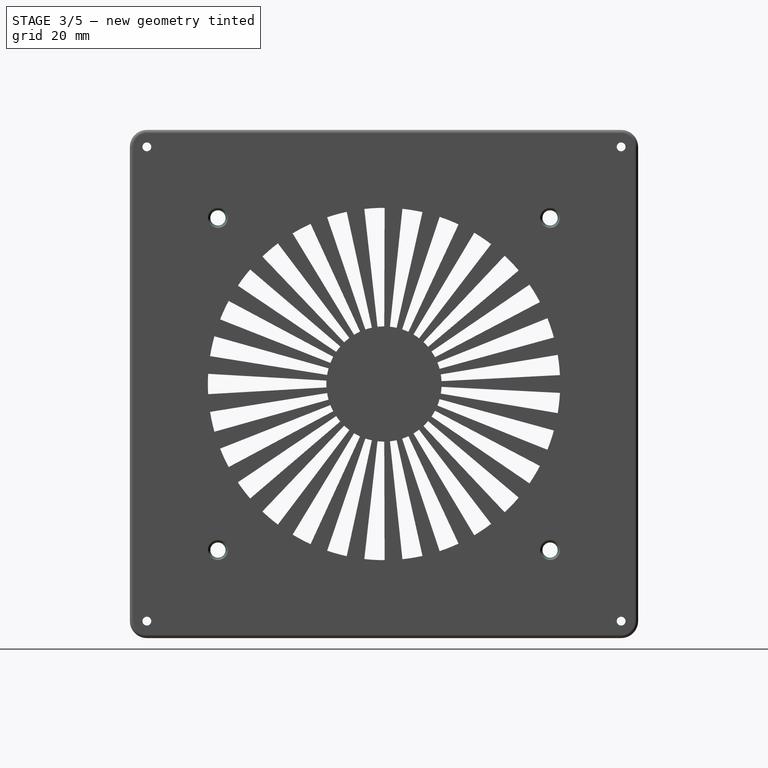
[diagram: stage 3 of 5 — right view after this stage's code; geometry added in this stage tinted green]
FEATURE [Sketcher::SketchObject] Sketch010
  ArcFitTolerance = 1e-06
  AttachmentSupport = -> [Pad005]
  ExternalGeometry = -> [Pad005]
  ExternalTypes = [0,0]
  FullyConstrained = true
  MakeInternals = false
  MapMode = 5
  Placement = pos=(78.74,0,0) rot=(0.57735,0.57735,0.57735;2.0944rad)
  sketch-geometry (11):
    g0: LineSegment [constr] StartX=-88.9 StartY=88.9 StartZ=0 EndX=0 EndY=-1.42e-14 EndZ=0
    g1: LineSegment [constr] StartX=0 StartY=-1.42e-14 StartZ=0 EndX=88.9 EndY=-88.9 EndZ=0
    g2: LineSegment [constr] StartX=-62.2554 StartY=62.2554 StartZ=0 EndX=-62.2554 EndY=-62.2554 EndZ=0
    g3: LineSegment [constr] StartX=-62.2554 StartY=-62.2554 StartZ=0 EndX=62.2554 EndY=-62.2554 EndZ=0
    g4: LineSegment [constr] StartX=62.2554 StartY=-62.2554 StartZ=0 EndX=62.2554 EndY=62.2554 EndZ=0
    g5: LineSegment [constr] StartX=62.2554 StartY=62.2554 StartZ=0 EndX=-62.2554 EndY=62.2554 EndZ=0
    g6: GeomPoint [constr] X=0 Y=-1.42e-14 Z=0
    g7: Circle CenterX=-62.2554 CenterY=-62.2554 CenterZ=0 NormalX=0 NormalY=0 NormalZ=1 AngleXU=0 Radius=2.8575
    g8: Circle CenterX=62.2554 CenterY=-62.2554 CenterZ=0 NormalX=0 NormalY=0 NormalZ=1 AngleXU=0 Radius=2.8575
    g9: Circle CenterX=62.2554 CenterY=62.2554 CenterZ=0 NormalX=0 NormalY=0 NormalZ=1 AngleXU=0 Radius=2.8575
    g10: Circle CenterX=-62.2554 CenterY=62.2554 CenterZ=0 NormalX=0 NormalY=0 NormalZ=1 AngleXU=0 Radius=2.8575
  constraints (25):
    c: Coincident(g0,g-4)
    c: Coincident(g0,g1)
    c: Parallel(g1,g0)
    c: Coincident(g1,g-3)
    c: Equal(g1,g0)
    c: Coincident(g2,g3)
    c: Coincident(g3,g4)
    c: Coincident(g4,g5)
    c: Coincident(g5,g2)
    c: Vertical(g2)
    c: Vertical(g4)
    c: Horizontal(g3)
    c: Horizontal(g5)
    c: Symmetric(g4,g2,g6)
    c: Coincident(g6,g0)
    c: Equal(g3,g2)
    c: DistanceX(g3,g3) = 124.511
    c: Coincident(g7,g2)
    c: Coincident(g8,g3)
    c: Coincident(g9,g4)
    c: Coincident(g10,g2)
    c: Equal(g10,g7)
    c: Equal(g7,g8)
    c: Equal(g7,g9)
    c: Diameter(g7) = 5.715
FEATURE [PartDesign::Pocket] Pocket004
  BaseFeature = -> Pad005
  Direction = (-1,0,0)
  Length = 3.81
  Length2 = 5
  Profile = -> Sketch010
  ReferenceAxis = -> Sketch010 [N_Axis]
  Refine = true
  SideType = 0
  Suppressed = false
  Type = 0
  Type2 = 0
FEATURE [PartDesign::Chamfer] Chamfer
  Angle = 45
  Base = -> Pocket004 [Edge84,Edge82,Edge78,Edge80]
  BaseFeature = -> Pocket004
  ChamferType = 0
  FlipDirection = false
  Refine = true
  Size = 0.889
  Size2 = 1
  SupportTransform = false
  Suppressed = false
  UseAllEdges = false
FEATURE [Sketcher::SketchObject] Sketch011
  ArcFitTolerance = 1e-06
  AttachmentSupport = -> [Chamfer]
  ExternalTypes = [0]
  FullyConstrained = true
  MakeInternals = false
  MapMode = 5
  Placement = pos=(78.74,0,0) rot=(0.57735,0.57735,0.57735;2.0944rad)
  sketch-geometry (10):
    g0: Circle [constr] CenterX=-3.9e-14 CenterY=3.6205e-12 CenterZ=0 NormalX=0 NormalY=0 NormalZ=1 AngleXU=0 Radius=66.04
    g1: Circle [constr] CenterX=-3.9e-14 CenterY=3.6205e-12 CenterZ=0 NormalX=0 NormalY=0 NormalZ=1 AngleXU=0 Radius=21.59
    g2: LineSegment StartX=-65.93 StartY=-3.81 StartZ=0 EndX=-21.5526 EndY=-1.27 EndZ=0
    g3: LineSegment StartX=-65.93 StartY=3.81 StartZ=0 EndX=-21.5526 EndY=1.27 EndZ=0
    g4: ArcOfCircle CenterX=-1.50509e-05 CenterY=-7.738e-13 CenterZ=0 NormalX=0 NormalY=0 NormalZ=1 AngleXU=0 Radius=21.59 StartAngle=3.08274 EndAngle=3.20045
    g5: ArcOfCircle CenterX=4.77663e-06 CenterY=1.09074e-09 CenterZ=0 NormalX=0 NormalY=0 NormalZ=1 AngleXU=0 Radius=66.04 StartAngle=3.08387 EndAngle=3.19932
    g6: LineSegment [constr] StartX=-21.5526 StartY=1.27 StartZ=0 EndX=-21.5526 EndY=0 EndZ=0
    g7: LineSegment [constr] StartX=-21.5526 StartY=0 StartZ=0 EndX=-21.5526 EndY=-1.27 EndZ=0
    g8: LineSegment [constr] StartX=-65.93 StartY=3.81 StartZ=0 EndX=-65.93 EndY=-1.42e-14 EndZ=0
    g9: LineSegment [constr] StartX=-65.93 StartY=-1.42e-14 StartZ=0 EndX=-65.93 EndY=-3.81 EndZ=0
  constraints (28):
    c: Diameter(g0) = 132.08
    c: Coincident(g0,g-1)
    c: Diameter(g1) = 43.18
    c: Coincident(g1,g0)
    c: PointOnObject(g2,g0)
    c: PointOnObject(g2,g1)
    c: PointOnObject(g3,g0)
    c: PointOnObject(g3,g1)
    c: Coincident(g4,g3)
    c: Coincident(g4,g2)
    c: Tangent(g4,g1)
    c: Coincident(g5,g2)
    c: Coincident(g5,g3)
    c: Tangent(g5,g0)
    c: Coincident(g6,g3)
    c: Coincident(g6,g7)
    c: Coincident(g7,g2)
    c: Equal(g7,g6)
    c: PointOnObject(g6,g-1)
    c: DistanceY(g7,g7) = 1.27
    c: Coincident(g8,g3)
    c: PointOnObject(g8,g-1)
    c: Coincident(g8,g9)
    c: Coincident(g9,g2)
    c: Equal(g9,g8)
    c: DistanceY(g9,g9) = 3.81
    c: Parallel(g9,g8)
    c: Parallel(g7,g6)
FEATURE [PartDesign::Pocket] Pocket005
  BaseFeature = -> Chamfer
  Direction = (-1,0,0)
  Length = 5.0038
  Length2 = 5
  Profile = -> Sketch011
  ReferenceAxis = -> Sketch011 [N_Axis]
  Refine = true
  SideType = 0
  Suppressed = false
  Type = 0
  Type2 = 0
FEATURE [PartDesign::PolarPattern] PolarPattern
  Angle = 360
  Axis = -> Sketch011 [N_Axis]
  BaseFeature = -> Pocket005
  Mode = 0
  Occurrences = 29
  Offset = 120
  Originals = -> [Pocket005]
  Refine = true
  SpacingPattern = [0]
  Spacings = [-1,-1,-1,-1,-1,-1,-1,-1,-1,-1,-1,-1,-1,-1,-1,-1,-1,-1,-1,-1,-1,-1,-1,-1,-1,-1,-1,-1]
  Suppressed = false
  TransformMode = 0
FEATURE [PartDesign::Body] Body003  label="PowerButton"
  AllowCompound = true
  Group = -> [Binder002,Sketch017,Pad011,Pad012,Sketch018,Pocket006,Sketch019,Pad013,Chamfer002]
  Origin = -> Origin006
  Tip = -> Chamfer002
FEATURE [App::Point] Origin009
  Role = Origin
FEATURE [PartDesign::SubShapeBinder] Binder003
  BindCopyOnChange = 0
  BindMode = 0
  ClaimChildren = false
  Context = -> Body004 [Binder003.]
  Fuse = false
  MakeFace = true
  OffsetFill = false
  OffsetIntersection = false
  OffsetJoinType = 0
  OffsetOpenResult = false
  PartialLoad = false
  Refine = true
  Relative = true
  Support = -> [Body]
  _Version = 2
FEATURE [Sketcher::SketchObject] Sketch020
  ArcFitTolerance = 1e-06
  AttachmentSupport = -> [Binder003]
  ExternalGeometry = -> [Binder003]
  ExternalTypes = [0,0,0,0]
  FullyConstrained = true
  MakeInternals = false
  MapMode = 5
  Placement = pos=(0,0,95.25) rot=(0,0,1;0rad)
  sketch-geometry (7):
    g0: LineSegment [constr] StartX=44.45 StartY=-73.66 StartZ=0 EndX=38.1 EndY=-80.01 EndZ=0
    g1: LineSegment [constr] StartX=38.1 StartY=-80.01 StartZ=0 EndX=31.75 EndY=-86.36 EndZ=0
    g2: LineSegment StartX=43.815 StartY=-75.2475 StartZ=0 EndX=32.385 EndY=-75.2475 EndZ=0
    g3: LineSegment StartX=32.385 StartY=-75.2475 StartZ=0 EndX=32.385 EndY=-84.7725 EndZ=0
    g4: LineSegment StartX=32.385 StartY=-84.7725 StartZ=0 EndX=43.815 EndY=-84.7725 EndZ=0
    g5: LineSegment StartX=43.815 StartY=-84.7725 StartZ=0 EndX=43.815 EndY=-75.2475 EndZ=0
    g6: GeomPoint [constr] X=38.1 Y=-80.01 Z=0
  constraints (17):
    c: Coincident(g0,g-6)
    c: Coincident(g0,g1)
    c: Coincident(g1,g-4)
    c: Equal(g1,g0)
    c: Parallel(g0,g1)
    c: Coincident(g2,g3)
    c: Coincident(g3,g4)
    c: Coincident(g4,g5)
    c: Coincident(g5,g2)
    c: Horizontal(g2)
    c: Horizontal(g4)
    c: Vertical(g3)
    c: Vertical(g5)
    c: Symmetric(g4,g2,g6)
    c: Coincident(g6,g0)
    c: DistanceY(g3,g3) = 9.525
    c: DistanceX(g4,g4) = 11.43
FEATURE [PartDesign::Pad] Pad014
  Direction = (0,0,1)
  Length = 10
  Length2 = 10
  Profile = -> Sketch020
  ReferenceAxis = -> Sketch020 [N_Axis]
  Refine = true
  Reversed = true
  SideType = 0
  Suppressed = false
  Type = 3
  Type2 = 0
  UpToFace = -> MultiTransform [Face391]
FEATURE [PartDesign::Body] Body
  AllowCompound = true
  Group = -> [Sketch,Pad,Sketch001,Pad001,Sketch002,Pad002,Sketch003,Pocket,Sketch004,Pocket001,LinearPattern,Sketch005,Pocket002,Sketch006,Pocket003,Sketch007,Pad003,MultiTransform,Mirror,Mirror001,Fillet]
  Origin = -> Origin
  Tip = -> Fillet
FEATURE [PartDesign::Fillet] Fillet001
  Base = -> PolarPattern [Edge141]
  BaseFeature = -> PolarPattern
  Radius = 1.27
  Refine = true
  SupportTransform = false
  Suppressed = false
  UseAllEdges = false
FEATURE [PartDesign::Body] Body001  label="Lid"
  AllowCompound = true
  Group = -> [Binder,Sketch008,Pad004,Sketch009,Pad005,Sketch010,Pocket004,Chamfer,Sketch011,Pocket005,PolarPattern,Fillet001]
  Origin = -> Origin002
  Tip = -> Fillet001
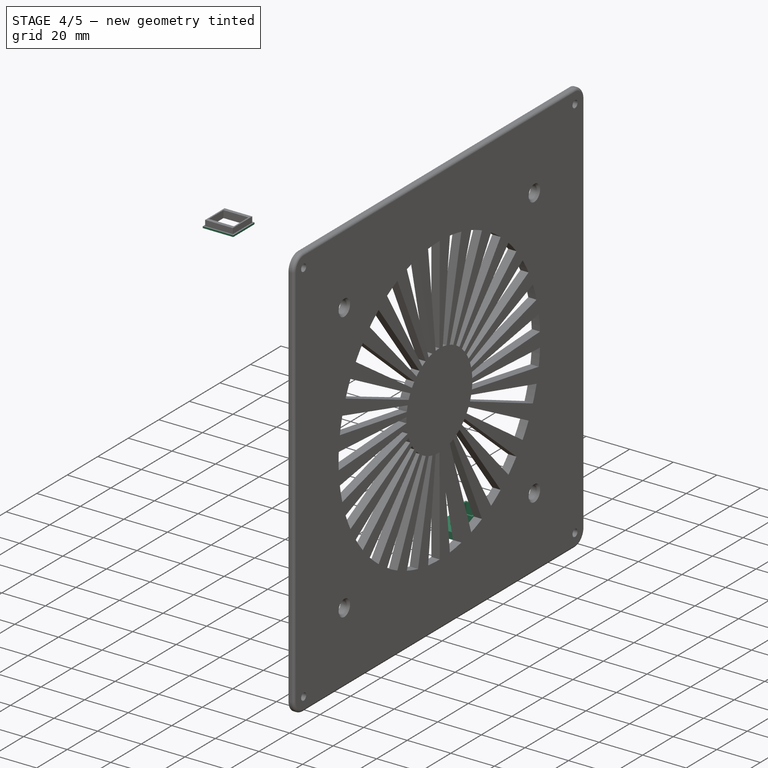
[diagram: stage 4 of 5 — iso view after this stage's code; geometry added in this stage tinted green]
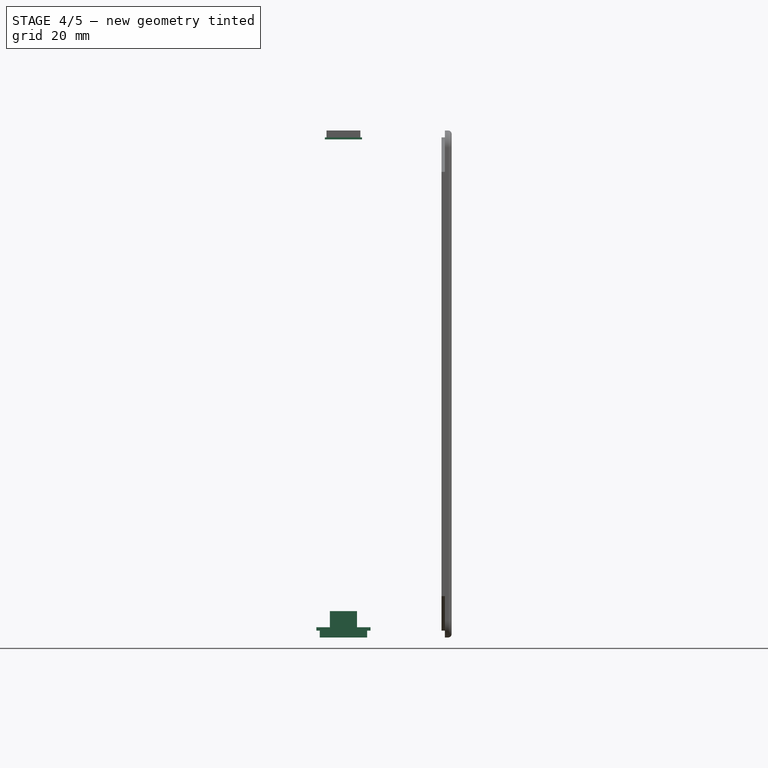
[diagram: stage 4 of 5 — front view after this stage's code; geometry added in this stage tinted green]
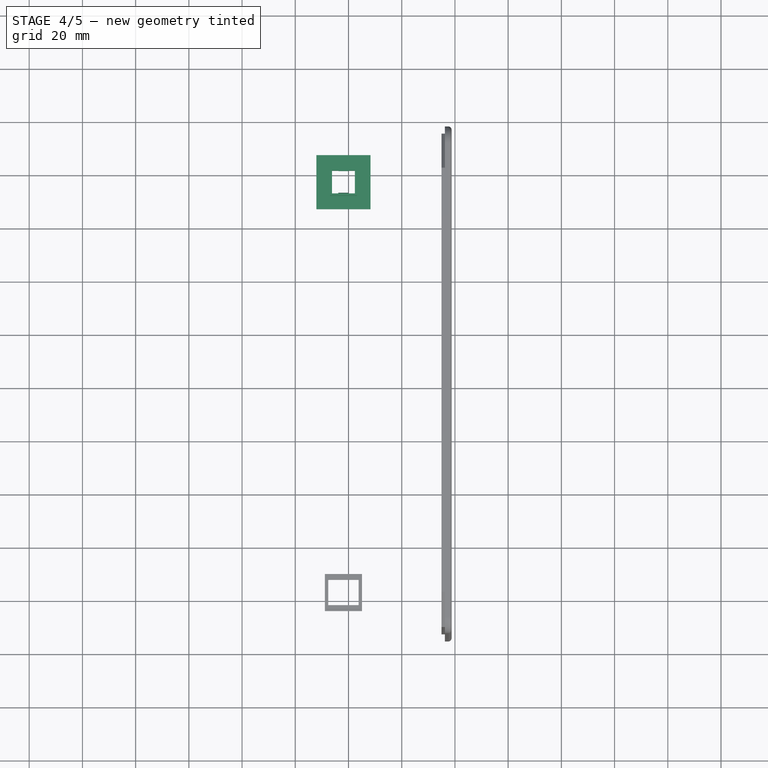
[diagram: stage 4 of 5 — top view after this stage's code; geometry added in this stage tinted green]
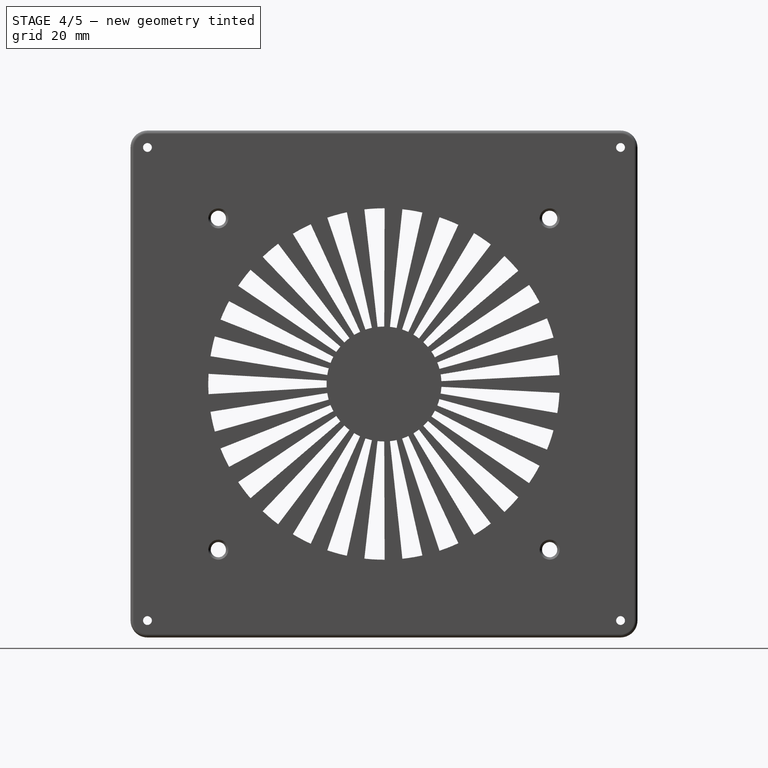
[diagram: stage 4 of 5 — right view after this stage's code; geometry added in this stage tinted green]
FEATURE [App::Point] Origin005
  Role = Origin
FEATURE [PartDesign::SubShapeBinder] Binder001
  BindCopyOnChange = 0
  BindMode = 0
  ClaimChildren = false
  Context = -> Body002 [Binder001.]
  Fuse = false
  MakeFace = true
  OffsetFill = false
  OffsetIntersection = false
  OffsetJoinType = 0
  OffsetOpenResult = false
  PartialLoad = false
  Refine = true
  Relative = true
  Support = -> [Body]
  _Version = 2
FEATURE [Sketcher::SketchObject] Sketch012
  ArcFitTolerance = 1e-06
  AttachmentSupport = -> [Binder001]
  ExternalGeometry = -> [Binder001]
  ExternalTypes = [0,0,0,0]
  FullyConstrained = true
  MakeInternals = false
  MapMode = 5
  Placement = pos=(0,0,-95.25) rot=(1,0,0;3.14159rad)
  sketch-geometry (7):
    g0: LineSegment [constr] StartX=46.99 StartY=-68.58 StartZ=0 EndX=38.1 EndY=-77.47 EndZ=0
    g1: LineSegment [constr] StartX=38.1 StartY=-77.47 StartZ=0 EndX=29.21 EndY=-86.36 EndZ=0
    g2: LineSegment StartX=33.782 StartY=-73.152 StartZ=0 EndX=33.782 EndY=-81.788 EndZ=0
    g3: LineSegment StartX=33.782 StartY=-81.788 StartZ=0 EndX=42.418 EndY=-81.788 EndZ=0
    g4: LineSegment StartX=42.418 StartY=-81.788 StartZ=0 EndX=42.418 EndY=-73.152 EndZ=0
    g5: LineSegment StartX=42.418 StartY=-73.152 StartZ=0 EndX=33.782 EndY=-73.152 EndZ=0
    g6: GeomPoint [constr] X=38.1 Y=-77.47 Z=0
  constraints (17):
    c: Coincident(g0,g-5)
    c: Coincident(g0,g1)
    c: Coincident(g1,g-6)
    c: Equal(g1,g0)
    c: Parallel(g0,g1)
    c: Coincident(g2,g3)
    c: Coincident(g3,g4)
    c: Coincident(g4,g5)
    c: Coincident(g5,g2)
    c: Vertical(g2)
    c: Vertical(g4)
    c: Horizontal(g3)
    c: Horizontal(g5)
    c: Symmetric(g4,g2,g6)
    c: Distance(g2,g4) = 8.636
    c: Coincident(g6,g0)
    c: Equal(g5,g2)
FEATURE [PartDesign::Pad] Pad006
  Direction = (0,0,-1)
  Length = 10
  Length2 = 10
  Profile = -> Sketch012
  ReferenceAxis = -> Sketch012 [N_Axis]
  Refine = true
  Reversed = true
  SideType = 0
  Suppressed = false
  Type = 3
  Type2 = 0
  UpToFace = -> MultiTransform [Face393]
FEATURE [Sketcher::SketchObject] Sketch013
  ArcFitTolerance = 1e-06
  AttachmentSupport = -> [Pad006]
  ExternalGeometry = -> [Pad006]
  ExternalTypes = [0,0,0,0,0,0]
  FullyConstrained = true
  MakeInternals = false
  MapMode = 5
  Placement = pos=(0,0,-92.71) rot=(0,0,1;0rad)
  sketch-geometry (7):
    g0: LineSegment [constr] StartX=29.21 StartY=86.36 StartZ=0 EndX=38.1 EndY=77.47 EndZ=0
    g1: LineSegment [constr] StartX=38.1 StartY=77.47 StartZ=0 EndX=46.99 EndY=68.58 EndZ=0
    g2: LineSegment StartX=27.94 StartY=87.63 StartZ=0 EndX=27.94 EndY=67.31 EndZ=0
    g3: LineSegment StartX=27.94 StartY=67.31 StartZ=0 EndX=48.26 EndY=67.31 EndZ=0
    g4: LineSegment StartX=48.26 StartY=67.31 StartZ=0 EndX=48.26 EndY=87.63 EndZ=0
    g5: LineSegment StartX=48.26 StartY=87.63 StartZ=0 EndX=27.94 EndY=87.63 EndZ=0
    g6: GeomPoint [constr] X=38.1 Y=77.47 Z=0
  constraints (17):
    c: Coincident(g0,g-3)
    c: Coincident(g0,g1)
    c: Coincident(g1,g-4)
    c: Equal(g1,g0)
    c: Parallel(g0,g1)
    c: Coincident(g2,g3)
    c: Coincident(g3,g4)
    c: Coincident(g4,g5)
    c: Coincident(g5,g2)
    c: Vertical(g2)
    c: Vertical(g4)
    c: Horizontal(g3)
    c: Horizontal(g5)
    c: Symmetric(g4,g2,g6)
    c: Distance(g2,g4) = 20.32
    c: Coincident(g6,g0)
    c: Equal(g5,g2)
FEATURE [PartDesign::Pad] Pad007
  BaseFeature = -> Pad006
  Direction = (0,0,1)
  Length = 1.27
  Length2 = 10
  Profile = -> Sketch013
  ReferenceAxis = -> Sketch013 [N_Axis]
  Refine = true
  SideType = 0
  Suppressed = false
  Type = 0
  Type2 = 0
FEATURE [Sketcher::SketchObject] Sketch014
  ArcFitTolerance = 1e-06
  AttachmentSupport = -> [Pad007]
  ExternalGeometry = -> [Pad007]
  ExternalTypes = [0,0,0,0,0,0]
  FullyConstrained = true
  MakeInternals = false
  MapMode = 5
  Placement = pos=(0,0,-91.44) rot=(0,0,1;0rad)
  sketch-geometry (7):
    g0: LineSegment [constr] StartX=33.782 StartY=81.788 StartZ=0 EndX=38.1 EndY=77.47 EndZ=0
    g1: LineSegment [constr] StartX=38.1 StartY=77.47 StartZ=0 EndX=42.418 EndY=73.152 EndZ=0
    g2: LineSegment StartX=33.02 StartY=82.55 StartZ=0 EndX=33.02 EndY=72.39 EndZ=0
    g3: LineSegment StartX=33.02 StartY=72.39 StartZ=0 EndX=43.18 EndY=72.39 EndZ=0
    g4: LineSegment StartX=43.18 StartY=72.39 StartZ=0 EndX=43.18 EndY=82.55 EndZ=0
    g5: LineSegment StartX=43.18 StartY=82.55 StartZ=0 EndX=33.02 EndY=82.55 EndZ=0
    g6: GeomPoint [constr] X=38.1 Y=77.47 Z=0
  constraints (17):
    c: Coincident(g0,g-3)
    c: Coincident(g0,g1)
    c: Coincident(g1,g-4)
    c: Equal(g1,g0)
    c: Parallel(g1,g0)
    c: Coincident(g2,g3)
    c: Coincident(g3,g4)
    c: Coincident(g4,g5)
    c: Coincident(g5,g2)
    c: Vertical(g2)
    c: Vertical(g4)
    c: Horizontal(g3)
    c: Horizontal(g5)
    c: Symmetric(g4,g2,g6)
    c: Distance(g2,g4) = 10.16
    c: Coincident(g6,g0)
    c: Equal(g3,g4)
FEATURE [PartDesign::Pad] Pad008
  BaseFeature = -> Pad007
  Direction = (0,0,1)
  Length = 6.096
  Length2 = 10
  Profile = -> Sketch014
  ReferenceAxis = -> Sketch014 [N_Axis]
  Refine = true
  SideType = 0
  Suppressed = false
  Type = 0
  Type2 = 0
FEATURE [Sketcher::SketchObject] Sketch015
  ArcFitTolerance = 1e-06
  AttachmentSupport = -> [Pad008]
  ExternalGeometry = -> [Pad008]
  ExternalTypes = [0,0]
  FullyConstrained = true
  MakeInternals = false
  MapMode = 5
  Placement = pos=(0,73.152,0) rot=(0,0.707107,0.707107;3.14159rad)
  sketch-geometry (8):
    g0: LineSegment [constr] StartX=-42.418 StartY=-85.344 StartZ=0 EndX=-38.1 EndY=-85.344 EndZ=0
    g1: LineSegment [constr] StartX=-38.1 StartY=-85.344 StartZ=0 EndX=-33.782 EndY=-85.344 EndZ=0
    g2: LineSegment StartX=-40.005 StartY=-85.344 StartZ=0 EndX=-40.005 EndY=-86.106 EndZ=0
    g3: LineSegment StartX=-40.005 StartY=-86.106 StartZ=0 EndX=-36.195 EndY=-86.106 EndZ=0
    g4: LineSegment StartX=-36.195 StartY=-86.106 StartZ=0 EndX=-36.195 EndY=-85.344 EndZ=0
    g5: LineSegment StartX=-36.195 StartY=-85.344 StartZ=0 EndX=-40.005 EndY=-85.344 EndZ=0
    g6: GeomPoint [constr] X=-38.1 Y=-85.725 Z=0
    g7: LineSegment [constr] StartX=-38.1 StartY=-85.344 StartZ=0 EndX=-38.1 EndY=-110.744 EndZ=0
  constraints (20):
    c: Coincident(g0,g-3)
    c: Coincident(g0,g1)
    c: Parallel(g1,g0)
    c: Equal(g1,g0)
    c: Coincident(g2,g3)
    c: Coincident(g3,g4)
    c: Coincident(g4,g5)
    c: Coincident(g5,g2)
    c: Vertical(g2)
    c: Vertical(g4)
    c: Horizontal(g3)
    c: Symmetric(g4,g2,g6)
    c: Distance(g7) = 25.4
    c: Coincident(g7,g0)
    c: Vertical(g7)
    c: PointOnObject(g6,g7)
    c: DistanceX(g3,g3) = 3.81
    c: Tangent(g1,g5)
    c: DistanceY(g4,g4) = 0.762
    c: Coincident(g1,g-5)
FEATURE [PartDesign::Pad] Pad009
  BaseFeature = -> Pad008
  Direction = (0,1,-2e-16)
  Length = 0.254
  Length2 = 10
  Profile = -> Sketch015
  ReferenceAxis = -> Sketch015 [N_Axis]
  Refine = true
  SideType = 0
  Suppressed = false
  Type = 0
  Type2 = 0
FEATURE [Part::DatumLine] DatumLine
  AttacherType = Attacher::AttachEngineLine
  MapMode = 42
  Placement = pos=(38.1,77.47,0) rot=(0,0,1;0rad)
FEATURE [PartDesign::PolarPattern] PolarPattern001
  Angle = 360
  Axis = -> DatumLine
  BaseFeature = -> Pad009
  Mode = 0
  Occurrences = 2
  Offset = 120
  Originals = -> [Pad009]
  Refine = true
  SpacingPattern = [0]
  Spacings = [-1]
  Suppressed = false
  TransformMode = 0
FEATURE [PartDesign::Chamfer] Chamfer001
  Angle = 45
  Base = -> PolarPattern001 [Edge72,Edge71]
  BaseFeature = -> PolarPattern001
  ChamferType = 1
  FlipDirection = false
  Refine = true
  Size = 0.508
  Size2 = 0.254
  SupportTransform = false
  Suppressed = false
  UseAllEdges = false
FEATURE [Sketcher::SketchObject] Sketch021
  ArcFitTolerance = 1e-06
  AttachmentSupport = -> [Pad014]
  ExternalGeometry = -> [Pad014]
  ExternalTypes = [0,0,0,0]
  FullyConstrained = true
  MakeInternals = false
  MapMode = 5
  Placement = pos=(0,0,92.71) rot=(1,0,0;3.14159rad)
  sketch-geometry (7):
    g0: LineSegment [constr] StartX=32.385 StartY=84.7725 StartZ=0 EndX=38.1 EndY=80.01 EndZ=0
    g1: LineSegment [constr] StartX=38.1 StartY=80.01 StartZ=0 EndX=43.815 EndY=75.2475 EndZ=0
    g2: LineSegment StartX=31.115 StartY=86.995 StartZ=0 EndX=31.115 EndY=73.025 EndZ=0
    g3: LineSegment StartX=31.115 StartY=73.025 StartZ=0 EndX=45.085 EndY=73.025 EndZ=0
    g4: LineSegment StartX=45.085 StartY=73.025 StartZ=0 EndX=45.085 EndY=86.995 EndZ=0
    g5: LineSegment StartX=45.085 StartY=86.995 StartZ=0 EndX=31.115 EndY=86.995 EndZ=0
    g6: GeomPoint [constr] X=38.1 Y=80.01 Z=0
  constraints (17):
    c: Coincident(g0,g-5)
    c: Coincident(g0,g1)
    c: Coincident(g1,g-6)
    c: Equal(g1,g0)
    c: Parallel(g0,g1)
    c: Coincident(g2,g3)
    c: Coincident(g3,g4)
    c: Coincident(g4,g5)
    c: Coincident(g5,g2)
    c: Vertical(g2)
    c: Vertical(g4)
    c: Horizontal(g3)
    c: Horizontal(g5)
    c: Symmetric(g4,g2,g6)
    c: Coincident(g6,g0)
    c: DistanceX(g3,g3) = 13.97
    c: Equal(g3,g4)
FEATURE [PartDesign::Pad] Pad015
  BaseFeature = -> Pad014
  Direction = (0,0,-1)
  Length = 0.762
  Length2 = 10
  Profile = -> Sketch021
  ReferenceAxis = -> Sketch021 [N_Axis]
  Refine = true
  SideType = 0
  Suppressed = false
  Type = 0
  Type2 = 0
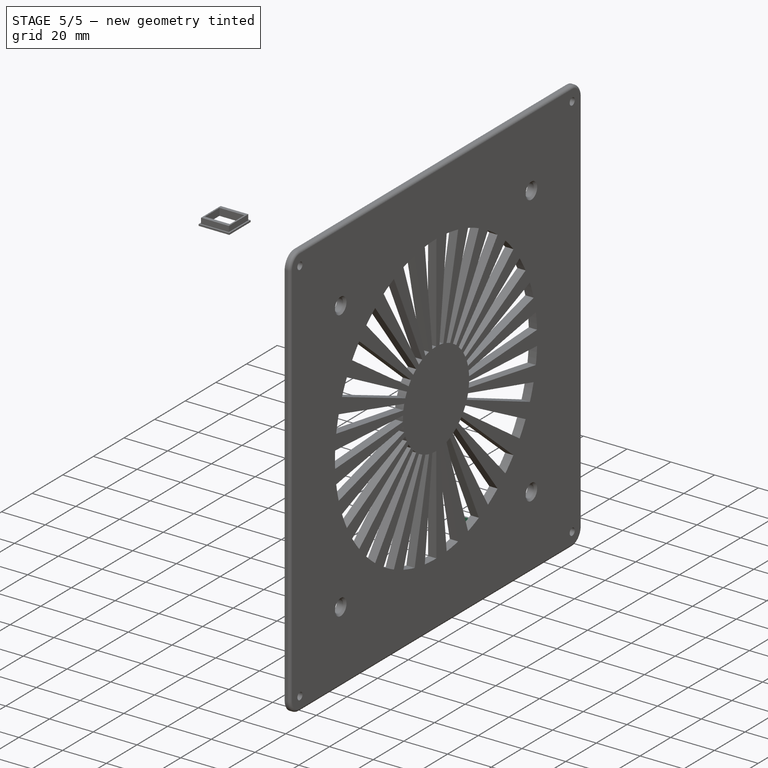
[diagram: stage 5 of 5 — iso view after this stage's code; geometry added in this stage tinted green]
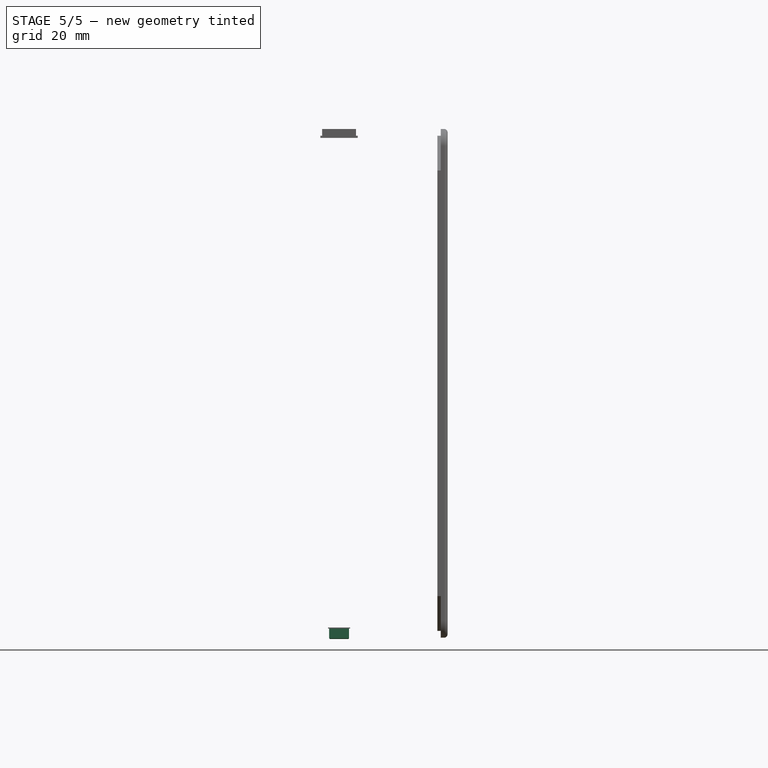
[diagram: stage 5 of 5 — front view after this stage's code; geometry added in this stage tinted green]
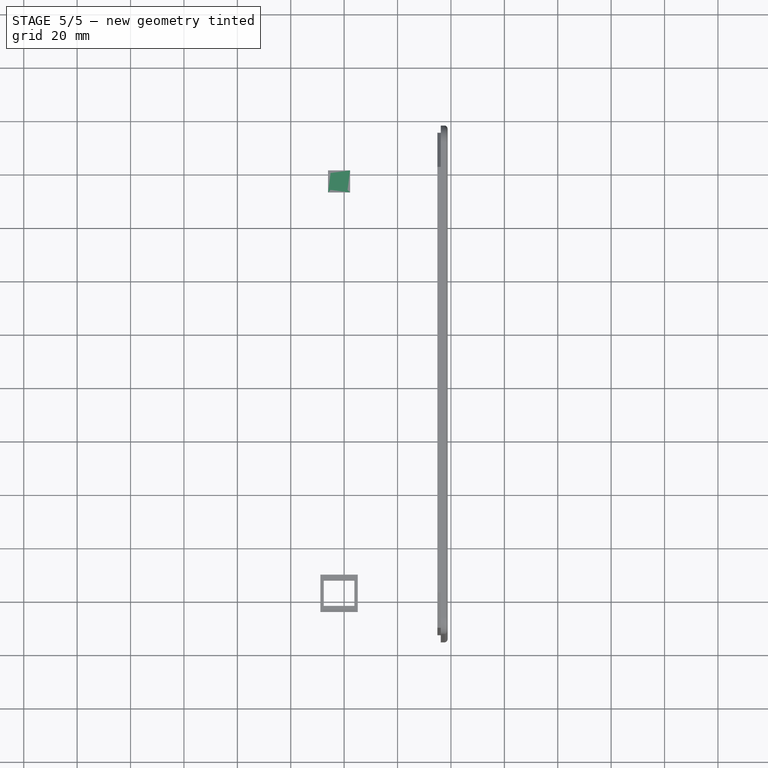
[diagram: stage 5 of 5 — top view after this stage's code; geometry added in this stage tinted green]
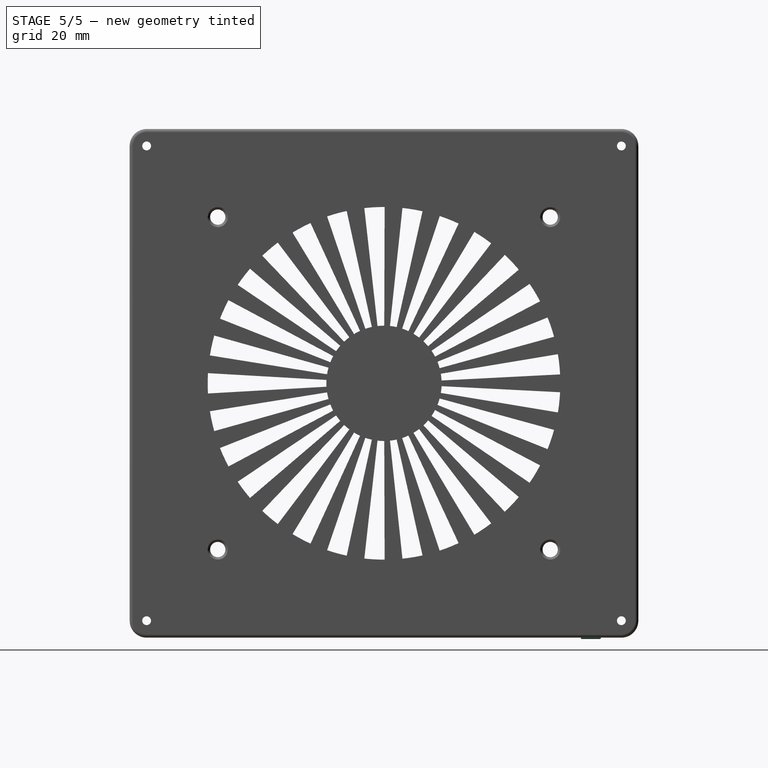
[diagram: stage 5 of 5 — right view after this stage's code; geometry added in this stage tinted green]
FEATURE [Sketcher::SketchObject] Sketch016
  ArcFitTolerance = 1e-06
  AttachmentSupport = -> [Chamfer001]
  ExternalGeometry = -> [Chamfer001]
  ExternalTypes = [0,0,0,0]
  FullyConstrained = true
  MakeInternals = false
  MapMode = 5
  Placement = pos=(0,0,-95.25) rot=(1,0,0;3.14159rad)
  sketch-geometry (7):
    g0: LineSegment [constr] StartX=33.782 StartY=-73.152 StartZ=0 EndX=38.1 EndY=-77.47 EndZ=0
    g1: LineSegment [constr] StartX=38.1 StartY=-77.47 StartZ=0 EndX=42.418 EndY=-81.788 EndZ=0
    g2: LineSegment StartX=34.29 StartY=-73.66 StartZ=0 EndX=34.29 EndY=-81.28 EndZ=0
    g3: LineSegment StartX=34.29 StartY=-81.28 StartZ=0 EndX=41.91 EndY=-81.28 EndZ=0
    g4: LineSegment StartX=41.91 StartY=-81.28 StartZ=0 EndX=41.91 EndY=-73.66 EndZ=0
    g5: LineSegment StartX=41.91 StartY=-73.66 StartZ=0 EndX=34.29 EndY=-73.66 EndZ=0
    g6: GeomPoint [constr] X=38.1 Y=-77.47 Z=0
  constraints (17):
    c: Coincident(g0,g-6)
    c: Coincident(g0,g1)
    c: Coincident(g1,g-4)
    c: Parallel(g1,g0)
    c: Equal(g0,g1)
    c: Coincident(g2,g3)
    c: Coincident(g3,g4)
    c: Coincident(g4,g5)
    c: Coincident(g5,g2)
    c: Vertical(g2)
    c: Vertical(g4)
    c: Horizontal(g3)
    c: Horizontal(g5)
    c: Symmetric(g4,g2,g6)
    c: Distance(g2,g4) = 7.62
    c: Coincident(g6,g0)
    c: PointOnObject(g3,g1)
FEATURE [PartDesign::Pad] Pad010
  BaseFeature = -> Chamfer001
  Direction = (0,0,-1)
  Length = 1.27
  Length2 = 10
  Profile = -> Sketch016
  ReferenceAxis = -> Sketch016 [N_Axis]
  Refine = true
  Reversed = true
  SideType = 0
  Suppressed = false
  Type = 0
  Type2 = 0
FEATURE [PartDesign::Body] Body002  label="PowerButtonHousing"
  AllowCompound = true
  Group = -> [Binder001,Sketch012,Pad006,Sketch013,Pad007,Sketch014,Pad008,Sketch015,Pad009,DatumLine,PolarPattern001,Chamfer001,Sketch016,Pad010]
  Origin = -> Origin004
  Tip = -> Pad010
FEATURE [App::Point] Origin007
  Role = Origin
FEATURE [PartDesign::SubShapeBinder] Binder002
  BindCopyOnChange = 0
  BindMode = 0
  ClaimChildren = false
  Context = -> Body003 [Binder002.]
  Fuse = false
  MakeFace = true
  OffsetFill = false
  OffsetIntersection = false
  OffsetJoinType = 0
  OffsetOpenResult = false
  PartialLoad = false
  Refine = true
  Relative = true
  Support = -> [Body002]
  _Version = 2
FEATURE [Sketcher::SketchObject] Sketch017
  ArcFitTolerance = 1e-06
  AttachmentSupport = -> [Binder002]
  ExternalGeometry = -> [Binder002]
  ExternalTypes = [0,0,0,0]
  FullyConstrained = true
  MakeInternals = false
  MapMode = 5
  Placement = pos=(0,0,-95.25) rot=(1,0,0;3.14159rad)
  sketch-geometry (5):
    g0: LineSegment StartX=34.3662 StartY=-73.7362 StartZ=0 EndX=34.3662 EndY=-81.2038 EndZ=0
    g1: LineSegment StartX=34.3662 StartY=-81.2038 StartZ=0 EndX=41.8338 EndY=-81.2038 EndZ=0
    g2: LineSegment StartX=41.8338 StartY=-81.2038 StartZ=0 EndX=41.8338 EndY=-73.7362 EndZ=0
    g3: LineSegment StartX=41.8338 StartY=-73.7362 StartZ=0 EndX=34.3662 EndY=-73.7362 EndZ=0
    g4: GeomPoint [constr] X=38.1 Y=-77.47 Z=0
  constraints (13):
    c: Coincident(g0,g1)
    c: Coincident(g1,g2)
    c: Coincident(g2,g3)
    c: Coincident(g3,g0)
    c: Vertical(g0)
    c: Vertical(g2)
    c: Horizontal(g1)
    c: Horizontal(g3)
    c: Symmetric(g2,g0,g4)
    c: Distance(g-3,g0) = 0.0762
    c: Distance(g-6,g3) = 0.0762
    c: Distance(g1,g-4) = 0.0762
    c: Distance(g-5,g2) = 0.0762
FEATURE [PartDesign::Pad] Pad011
  Direction = (0,0,-1)
  Length = 3.81
  Length2 = 10
  Profile = -> Sketch017
  ReferenceAxis = -> Sketch017 [N_Axis]
  Refine = true
  Reversed = true
  SideType = 0
  Suppressed = false
  Type = 0
  Type2 = 0
FEATURE [PartDesign::Pad] Pad012
  BaseFeature = -> Pad011
  Direction = (0,0,-1)
  Length = 0.508
  Length2 = 10
  Profile = -> Pad011 [Face5]
  Refine = true
  SideType = 0
  Suppressed = false
  Type = 0
  Type2 = 0
FEATURE [Sketcher::SketchObject] Sketch018
  ArcFitTolerance = 1e-06
  AttachmentSupport = -> [Pad012]
  ExternalGeometry = -> [Pad012]
  ExternalTypes = [0,0,0,0]
  FullyConstrained = true
  MakeInternals = false
  MapMode = 5
  Placement = pos=(0,0,-91.44) rot=(0,0,1;0rad)
  sketch-geometry (7):
    g0: LineSegment [constr] StartX=34.3662 StartY=73.7362 StartZ=0 EndX=38.1 EndY=77.47 EndZ=0
    g1: LineSegment [constr] StartX=38.1 StartY=77.47 StartZ=0 EndX=41.8338 EndY=81.2038 EndZ=0
    g2: LineSegment StartX=34.925 StartY=80.645 StartZ=0 EndX=34.925 EndY=74.295 EndZ=0
    g3: LineSegment StartX=34.925 StartY=74.295 StartZ=0 EndX=41.275 EndY=74.295 EndZ=0
    g4: LineSegment StartX=41.275 StartY=74.295 StartZ=0 EndX=41.275 EndY=80.645 EndZ=0
    g5: LineSegment StartX=41.275 StartY=80.645 StartZ=0 EndX=34.925 EndY=80.645 EndZ=0
    g6: GeomPoint [constr] X=38.1 Y=77.47 Z=0
  constraints (17):
    c: Coincident(g0,g-4)
    c: Coincident(g0,g1)
    c: Coincident(g1,g-6)
    c: Equal(g1,g0)
    c: Parallel(g0,g1)
    c: Coincident(g2,g3)
    c: Coincident(g3,g4)
    c: Coincident(g4,g5)
    c: Coincident(g5,g2)
    c: Vertical(g2)
    c: Vertical(g4)
    c: Horizontal(g3)
    c: Horizontal(g5)
    c: Symmetric(g4,g2,g6)
    c: Distance(g2,g4) = 6.35
    c: Coincident(g6,g0)
    c: Equal(g5,g4)
FEATURE [PartDesign::Pocket] Pocket006
  BaseFeature = -> Pad012
  Direction = (0,0,-1)
  Length = 1.905
  Length2 = 5
  Profile = -> Sketch018
  ReferenceAxis = -> Sketch018 [N_Axis]
  Refine = true
  SideType = 0
  Suppressed = false
  Type = 0
  Type2 = 0
FEATURE [Sketcher::SketchObject] Sketch019
  ArcFitTolerance = 1e-06
  AttachmentSupport = -> [Pocket006]
  ExternalGeometry = -> [Pocket006]
  ExternalTypes = [0,0,0,0,0,0]
  FullyConstrained = true
  MakeInternals = false
  MapMode = 5
  Placement = pos=(0,0,-91.44) rot=(0,0,1;0rad)
  sketch-geometry (7):
    g0: LineSegment [constr] StartX=41.8338 StartY=81.2038 StartZ=0 EndX=38.1 EndY=77.47 EndZ=0
    g1: LineSegment [constr] StartX=38.1 StartY=77.47 StartZ=0 EndX=34.3662 EndY=73.7362 EndZ=0
    g2: LineSegment StartX=33.9725 StartY=81.5975 StartZ=0 EndX=33.9725 EndY=73.3425 EndZ=0
    g3: LineSegment StartX=33.9725 StartY=73.3425 StartZ=0 EndX=42.2275 EndY=73.3425 EndZ=0
    g4: LineSegment StartX=42.2275 StartY=73.3425 StartZ=0 EndX=42.2275 EndY=81.5975 EndZ=0
    g5: LineSegment StartX=42.2275 StartY=81.5975 StartZ=0 EndX=33.9725 EndY=81.5975 EndZ=0
    g6: GeomPoint [constr] X=38.1 Y=77.47 Z=0
  constraints (17):
    c: Coincident(g0,g-4)
    c: Coincident(g0,g1)
    c: Coincident(g1,g-3)
    c: Equal(g1,g0)
    c: Parallel(g0,g1)
    c: Coincident(g2,g3)
    c: Coincident(g3,g4)
    c: Coincident(g4,g5)
    c: Coincident(g5,g2)
    c: Vertical(g2)
    c: Vertical(g4)
    c: Horizontal(g3)
    c: Horizontal(g5)
    c: Symmetric(g4,g2,g6)
    c: Distance(g2,g4) = 8.255
    c: Coincident(g6,g0)
    c: Equal(g5,g4)
FEATURE [PartDesign::Pad] Pad013
  BaseFeature = -> Pocket006
  Direction = (0,0,1)
  Length = 0.381
  Length2 = 10
  Profile = -> Sketch019
  ReferenceAxis = -> Sketch019 [N_Axis]
  Refine = true
  Reversed = true
  SideType = 0
  Suppressed = false
  Type = 0
  Type2 = 0
FEATURE [PartDesign::Chamfer] Chamfer002
  Angle = 45
  Base = -> Pad013 [Face10]
  BaseFeature = -> Pad013
  ChamferType = 0
  FlipDirection = false
  Refine = true
  Size = 0.254
  Size2 = 1
  SupportTransform = false
  Suppressed = false
  UseAllEdges = false
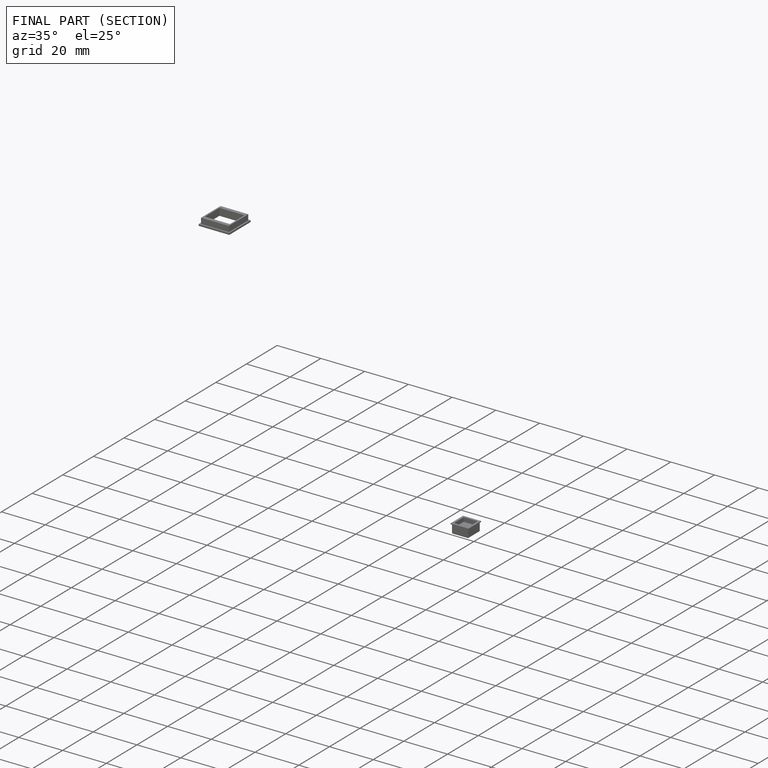
[diagram: finished part — half-section view (interior)]
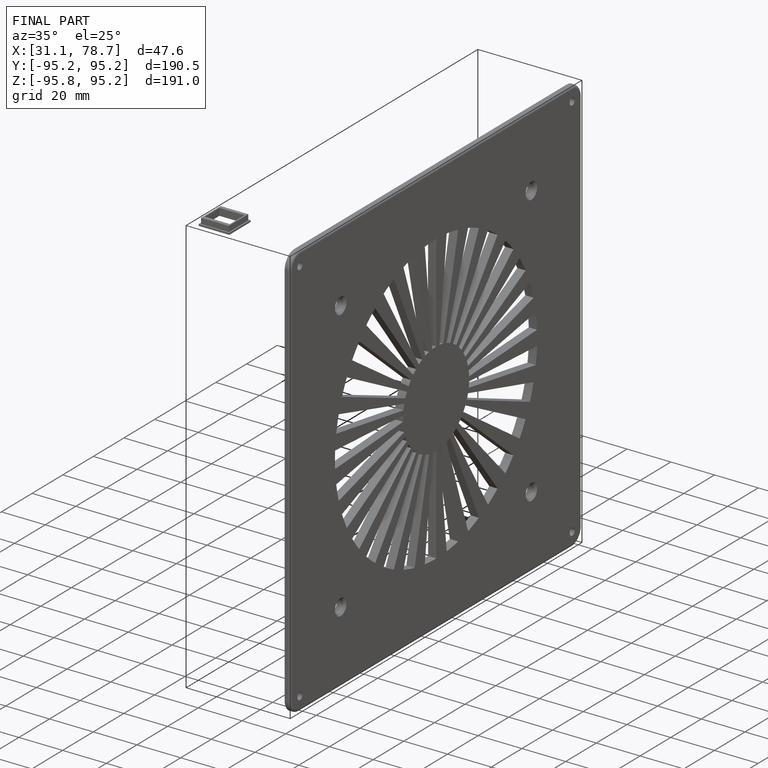
[diagram: finished part — iso view with bounding-box wireframe]
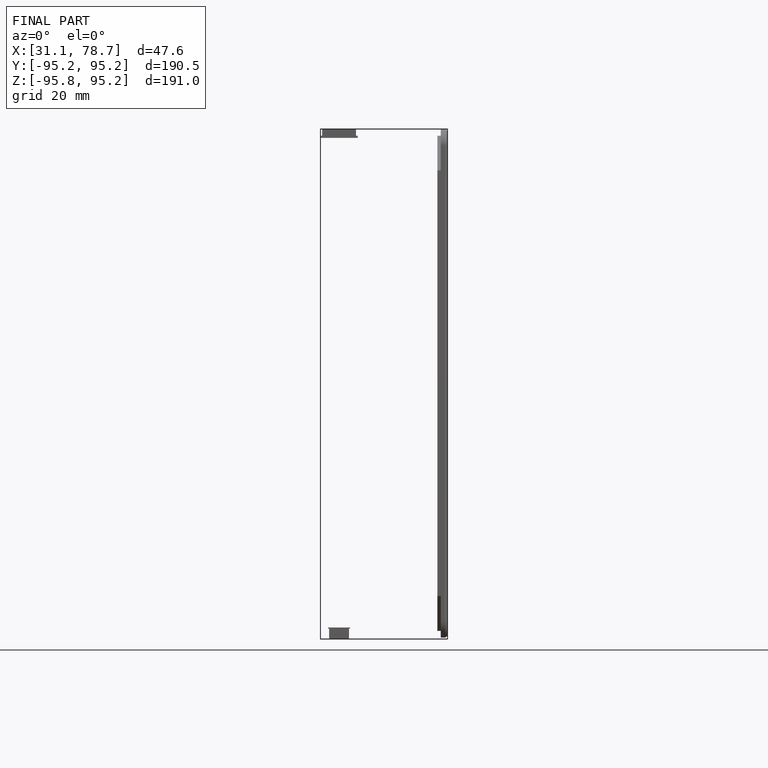
[diagram: finished part — front view with bounding-box wireframe]
